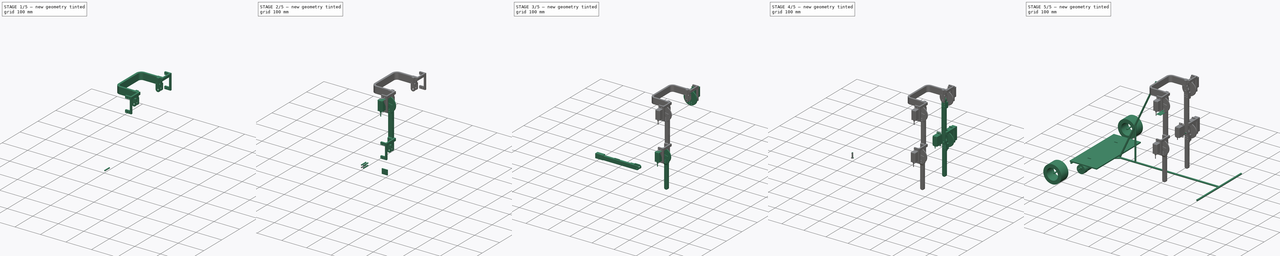
[diagram: build sequence overview — one tinted view per stage of 5, left to right]
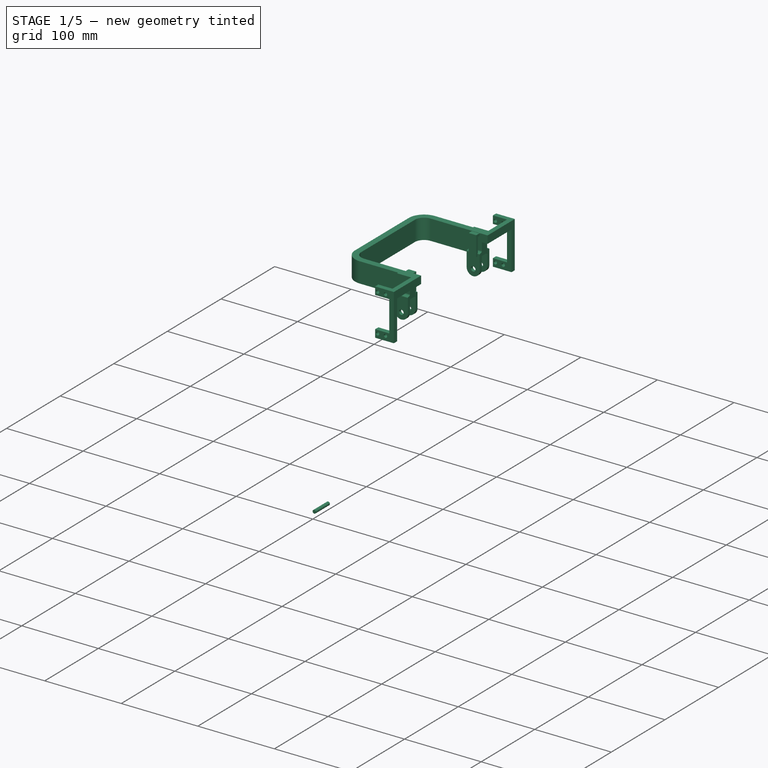
[diagram: stage 1 of 5 — iso view after this stage's code; geometry added in this stage tinted green]
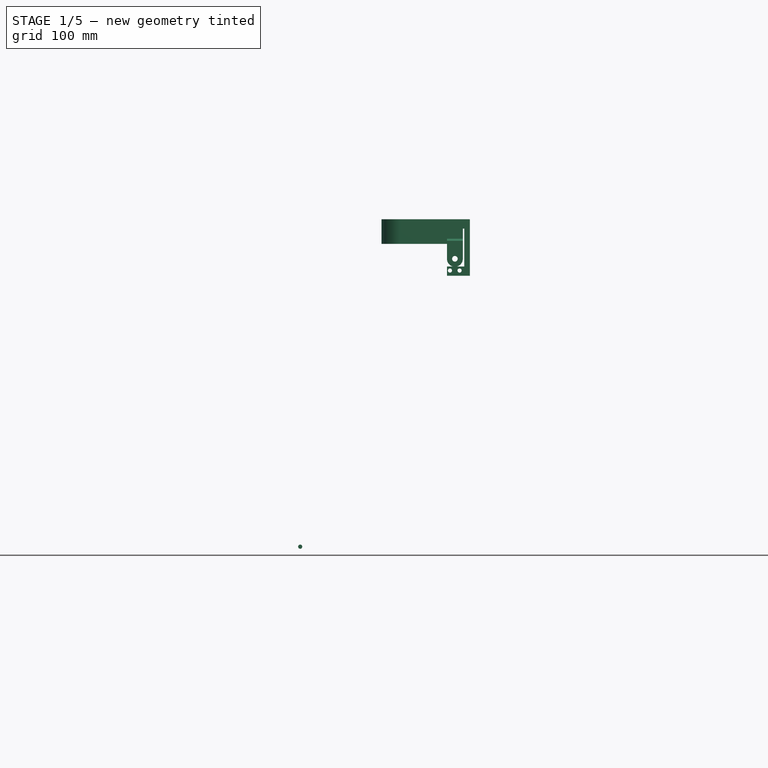
[diagram: stage 1 of 5 — front view after this stage's code; geometry added in this stage tinted green]
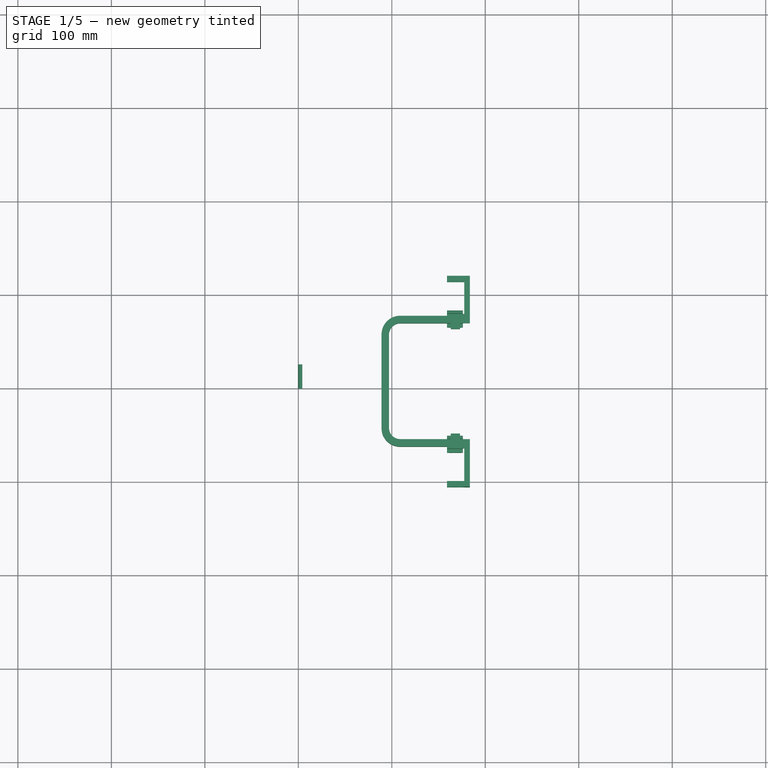
[diagram: stage 1 of 5 — top view after this stage's code; geometry added in this stage tinted green]
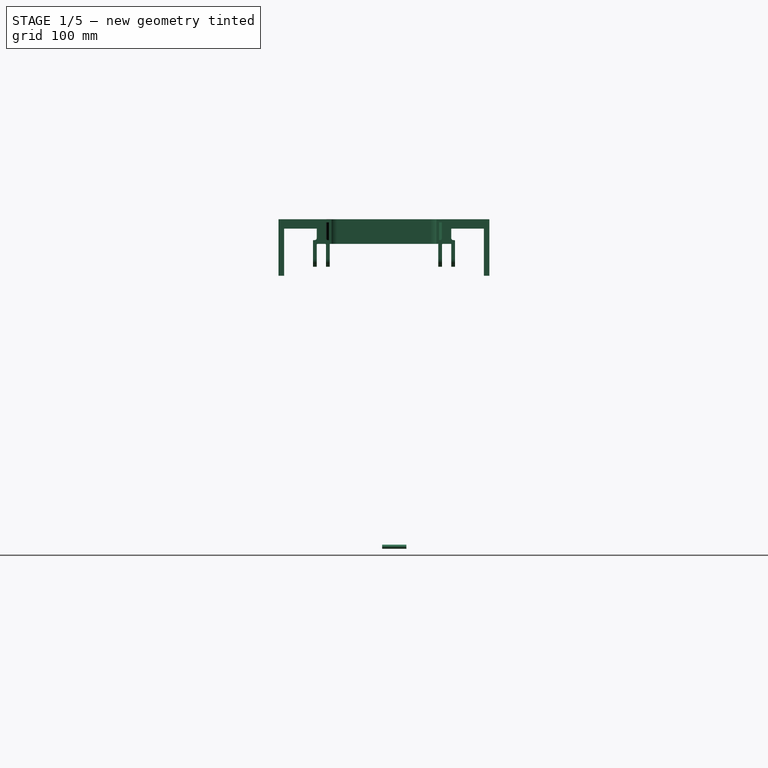
[diagram: stage 1 of 5 — right view after this stage's code; geometry added in this stage tinted green]
FCSTD DOCUMENT  (FreeCAD 0.16R6712 (Git))
Label: Exo+smart
License: All rights reserved
LicenseURL: http://en.wikipedia.org/wiki/All_rights_reserved
objects: Part::Feature×54, Part::Cylinder×47, Part::MultiFuse×40, Part::Cut×31, Part::Box×30, Sketcher::SketchObject×27, PartDesign::Pad×27, Part::Fillet×14, Part::FeaturePython×12, Part::Mirroring×10, Part::Chamfer×4, App::MeasureDistance×2, Part::Compound×1
note: 324 computed .brp shape members not serialized (recipe doc carries the construction recipe); baked Part::Feature solids carry a one-line shape summary decoded from their .brp

FEATURE [Part::Box] Box016  label="Cubo_gancho001"
  Height = 10
  Length = 20
  Placement = pos=(-16,0,4) rot=(0,0,1;0rad)
  Width = 17
FEATURE [Sketcher::SketchObject] Sketch010  label="Boceto_gancho002"
  sketch-geometry (5):
    g0: LineSegment StartX=0 StartY=17 StartZ=0 EndX=20 EndY=17 EndZ=0
    g1: LineSegment StartX=20 StartY=0 StartZ=0 EndX=0 EndY=0 EndZ=0
    g2: LineSegment StartX=0 StartY=0 StartZ=0 EndX=0 EndY=17 EndZ=0
    g3: ArcOfCircle CenterX=20 CenterY=8.5 CenterZ=0 NormalX=0 NormalY=0 NormalZ=1 Radius=8.5 StartAngle=4.71239 EndAngle=7.85398
    g4: Circle CenterX=20 CenterY=8.5 CenterZ=0 NormalX=0 NormalY=0 NormalZ=1 Radius=3
  constraints (14):
    c: Coincident(g1,g2)
    c: Coincident(g2,g0)
    c: Horizontal(g0)
    c: Horizontal(g1)
    c: Vertical(g2)
    c: DistanceY(g2,g2) = 17
    c: DistanceX(g0,g0) = 20
    c: Equal(g0,g1)
    c: Coincident(g3,g0)
    c: Coincident(g3,g1)
    c: Coincident(g-1,g1)
    c: Coincident(g4,g3)
    c: Radius(g3) = 8.5
    c: Radius(g4) = 3
FEATURE [PartDesign::Pad] Pad010  label="Ciculo_gancho003"
  Length = 4
  Length2 = 100
  Sketch = -> Sketch010
  Type = 0
FEATURE [Sketcher::SketchObject] Sketch011  label="Boceto_gancho003"
  Placement = pos=(0,0,14) rot=(0,0,1;0rad)
  sketch-geometry (5):
    g0: LineSegment StartX=0 StartY=17 StartZ=0 EndX=20 EndY=17 EndZ=0
    g1: LineSegment StartX=20 StartY=0 StartZ=0 EndX=0 EndY=0 EndZ=0
    g2: LineSegment StartX=0 StartY=0 StartZ=0 EndX=0 EndY=17 EndZ=0
    g3: ArcOfCircle CenterX=20 CenterY=8.5 CenterZ=0 NormalX=0 NormalY=0 NormalZ=1 Radius=8.5 StartAngle=4.71239 EndAngle=7.85398
    g4: Circle CenterX=20 CenterY=8.5 CenterZ=0 NormalX=0 NormalY=0 NormalZ=1 Radius=3
  constraints (14):
    c: Coincident(g1,g2)
    c: Coincident(g2,g0)
    c: Horizontal(g0)
    c: Horizontal(g1)
    c: Vertical(g2)
    c: DistanceY(g2,g2) = 17
    c: DistanceX(g0,g0) = 20
    c: Equal(g0,g1)
    c: Coincident(g3,g0)
    c: Coincident(g3,g1)
    c: Coincident(g-1,g1)
    c: Coincident(g4,g3)
    c: Radius(g4) = 3
    c: Radius(g3) = 8.5
FEATURE [PartDesign::Pad] Pad011  label="Ciculo_gancho004"
  Length = 4
  Length2 = 100
  Placement = pos=(0,0,14) rot=(0,0,1;0rad)
  Sketch = -> Sketch011
  Type = 0
FEATURE [Part::MultiFuse] Fusion009003009  label="Gancho001"
  Shapes = -> [Box016,Pad010,Pad011]
FEATURE [Part::Fillet] Fillet005  label="Gancho_redondeo001"
  Base = -> Fusion009003009
  Edges = 4 edges r=1: [Edge10,Edge27,Edge28,Edge34]
  Placement = pos=(16,15,0) rot=(1,0,0;1.5708rad)
FEATURE [Part::Fillet] Fillet006  label="Gancho_cadera_1"
  Base = -> Fillet005
  Edges = 4 edges: [Edge36 r=2,Edge37 r=1,Edge41 r=1,Edge47 r=2]
  Placement = pos=(-20,-9,0) rot=(0,0,1;0rad)
FEATURE [Part::Box] Box018  label="Cubo_externo"
  Height = 17
  Length = 16.3
  Placement = pos=(-26.3,-8,0) rot=(0,0,1;0rad)
  Width = 10
FEATURE [Sketcher::SketchObject] Sketch009
  Placement = pos=(0,0,0) rot=(0.57735,0.57735,-0.57735;4.18879rad)
  sketch-geometry (12):
    g0: LineSegment StartX=-140 StartY=0 StartZ=0 EndX=-140 EndY=50 EndZ=0
    g1: LineSegment StartX=-120 StartY=70 StartZ=0 EndX=-20 EndY=70 EndZ=0
    g2: LineSegment StartX=0 StartY=50 StartZ=0 EndX=0 EndY=0 EndZ=0
    g3: LineSegment StartX=0 StartY=0 StartZ=0 EndX=-8 EndY=0 EndZ=0
    g4: LineSegment StartX=-8 StartY=0 StartZ=0 EndX=-8 EndY=50 EndZ=0
    g5: LineSegment StartX=-20 StartY=62 StartZ=0 EndX=-120 EndY=62 EndZ=0
    g6: LineSegment StartX=-132 StartY=50 StartZ=0 EndX=-132 EndY=0 EndZ=0
    g7: LineSegment StartX=-132 StartY=0 StartZ=0 EndX=-140 EndY=0 EndZ=0
    g8: ArcOfCircle CenterX=-120 CenterY=50 CenterZ=0 NormalX=0 NormalY=0 NormalZ=1 Radius=12 StartAngle=1.5708 EndAngle=3.14159
    g9: ArcOfCircle CenterX=-120 CenterY=50 CenterZ=0 NormalX=0 NormalY=0 NormalZ=1 Radius=20 StartAngle=1.5708 EndAngle=3.14159
    g10: ArcOfCircle CenterX=-20 CenterY=50 CenterZ=0 NormalX=0 NormalY=0 NormalZ=1 Radius=12 StartAngle=0 EndAngle=1.5708
    g11: ArcOfCircle CenterX=-20 CenterY=50 CenterZ=0 NormalX=0 NormalY=0 NormalZ=1 Radius=20 StartAngle=0 EndAngle=1.5708
  constraints (32):
    c: Vertical(g0)
    c: Horizontal(g1)
    c: Vertical(g2)
    c: Coincident(g2,g3)
    c: Coincident(g3,g4)
    c: Vertical(g4)
    c: Horizontal(g5)
    c: Vertical(g6)
    c: Coincident(g6,g7)
    c: Coincident(g7,g0)
    c: Horizontal(g7)
    c: Horizontal(g3)
    c: DistanceX(g3,g3) = 8
    c: Equal(g6,g4)
    c: PointOnObject(g2,g-1)
    c: PointOnObject(g2,g-2)
    c: DistanceX(g7,g7) = 8
    c: Tangent(g6,g8) = -1.5708
    c: Tangent(g5,g8) = -1.5708
    c: Tangent(g0,g9) = 1.5708
    c: Tangent(g1,g9) = 1.5708
    c: Tangent(g5,g10) = -1.5708
    c: Tangent(g2,g11) = 1.5708
    c: Tangent(g1,g11) = 1.5708
    c: Coincident(g10,g11)
    c: Radius(g10) = 12
    c: PointOnObject(g6,g-1)
    c: Coincident(g8,g9)
    c: Equal(g10,g8)
    c: DistanceY(g2,g2) = 50
    c: Coincident(g10,g4)
    c: DistanceX(g1,g1) = 100
FEATURE [PartDesign::Pad] Pad009  label="cadera"
  Length = 26.3
  Length2 = 100
  Placement = pos=(0,0,0) rot=(0.57735,0.57735,-0.57735;4.18879rad)
  Sketch = -> Sketch009
  Type = 0
FEATURE [Part::MultiFuse] Fusion009003020  label="Gancho_cadera"
  Shapes = -> [Fillet006,Box018]
FEATURE [Part::Box] Box024  label="Cubo_gancho002"
  Height = 10
  Length = 20
  Placement = pos=(-16,0,4) rot=(0,0,1;0rad)
  Width = 17
FEATURE [Sketcher::SketchObject] Sketch018  label="Boceto_gancho004"
  sketch-geometry (5):
    g0: LineSegment StartX=0 StartY=17 StartZ=0 EndX=20 EndY=17 EndZ=0
    g1: LineSegment StartX=20 StartY=0 StartZ=0 EndX=0 EndY=0 EndZ=0
    g2: LineSegment StartX=0 StartY=0 StartZ=0 EndX=0 EndY=17 EndZ=0
    g3: ArcOfCircle CenterX=20 CenterY=8.5 CenterZ=0 NormalX=0 NormalY=0 NormalZ=1 Radius=8.5 StartAngle=4.71239 EndAngle=7.85398
    g4: Circle CenterX=20 CenterY=8.5 CenterZ=0 NormalX=0 NormalY=0 NormalZ=1 Radius=3
  constraints (14):
    c: Coincident(g1,g2)
    c: Coincident(g2,g0)
    c: Horizontal(g0)
    c: Horizontal(g1)
    c: Vertical(g2)
    c: DistanceY(g2,g2) = 17
    c: DistanceX(g0,g0) = 20
    c: Equal(g0,g1)
    c: Coincident(g3,g0)
    c: Coincident(g3,g1)
    c: Coincident(g-1,g1)
    c: Coincident(g4,g3)
    c: Radius(g3) = 8.5
    c: Radius(g4) = 3
FEATURE [PartDesign::Pad] Pad018  label="Ciculo_gancho005"
  Length = 4
  Length2 = 100
  Sketch = -> Sketch018
  Type = 0
FEATURE [Sketcher::SketchObject] Sketch019  label="Boceto_gancho005"
  Placement = pos=(0,0,14) rot=(0,0,1;0rad)
  sketch-geometry (5):
    g0: LineSegment StartX=0 StartY=17 StartZ=0 EndX=20 EndY=17 EndZ=0
    g1: LineSegment StartX=20 StartY=0 StartZ=0 EndX=0 EndY=0 EndZ=0
    g2: LineSegment StartX=0 StartY=0 StartZ=0 EndX=0 EndY=17 EndZ=0
    g3: ArcOfCircle CenterX=20 CenterY=8.5 CenterZ=0 NormalX=0 NormalY=0 NormalZ=1 Radius=8.5 StartAngle=4.71239 EndAngle=7.85398
    g4: Circle CenterX=20 CenterY=8.5 CenterZ=0 NormalX=0 NormalY=0 NormalZ=1 Radius=3
  constraints (14):
    c: Coincident(g1,g2)
    c: Coincident(g2,g0)
    c: Horizontal(g0)
    c: Horizontal(g1)
    c: Vertical(g2)
    c: DistanceY(g2,g2) = 17
    c: DistanceX(g0,g0) = 20
    c: Equal(g0,g1)
    c: Coincident(g3,g0)
    c: Coincident(g3,g1)
    c: Coincident(g-1,g1)
    c: Coincident(g4,g3)
    c: Radius(g4) = 3
    c: Radius(g3) = 8.5
FEATURE [PartDesign::Pad] Pad019  label="Ciculo_gancho006"
  Length = 4
  Length2 = 100
  Placement = pos=(0,0,14) rot=(0,0,1;0rad)
  Sketch = -> Sketch019
  Type = 0
FEATURE [Part::MultiFuse] Fusion009003021  label="Gancho002"
  Shapes = -> [Box024,Pad018,Pad019]
FEATURE [Part::Fillet] Fillet007  label="Gancho_redondeo002"
  Base = -> Fusion009003021
  Edges = 4 edges r=1: [Edge10,Edge27,Edge28,Edge34]
  Placement = pos=(16,15,0) rot=(1,0,0;1.5708rad)
FEATURE [Part::Fillet] Fillet008  label="Gancho_cadera_002"
  Base = -> Fillet007
  Edges = 4 edges: [Edge36 r=2,Edge37 r=1,Edge41 r=1,Edge47 r=2]
  Placement = pos=(-20,-9,0) rot=(0,0,1;0rad)
FEATURE [Part::Box] Box025  label="Cubo_externo001"
  Height = 17
  Length = 16.3
  Placement = pos=(-26.3,-8,0) rot=(0,0,1;0rad)
  Width = 10
FEATURE [Part::MultiFuse] Fusion009003022  label="Gancho_cadera1"
  Placement = pos=(0,-134,0) rot=(0,0,1;0rad)
  Shapes = -> [Fillet008,Box025]
FEATURE [Part::MultiFuse] Fusion009003023  label="Ganchos_cadera"
  Shapes = -> [Fusion009003020,Fusion009003022]
FEATURE [Part::MultiFuse] Fusion009003024  label="Cadera_ganchos"
  Placement = pos=(-2,5,0) rot=(0,0,1;0rad)
  Shapes = -> [Pad009,Fusion009003023]
FEATURE [Part::Box] Box026  label="Resta_sujetador_cadera"
  Height = 30
  Length = 12
  Placement = pos=(-29.5,-13,0) rot=(0,0,1;0rad)
  Width = 10
FEATURE [Sketcher::SketchObject] Sketch020  label="Boceto_suje_motor003"
  Placement = pos=(0,0,0) rot=(0.57735,0.57735,0.57735;2.0944rad)
  sketch-geometry (8):
    g0: LineSegment StartX=14 StartY=0 StartZ=0 EndX=0 EndY=0 EndZ=0
    g1: LineSegment StartX=0 StartY=0 StartZ=0 EndX=0 EndY=24.5 EndZ=0
    g2: LineSegment StartX=0 StartY=24.5 StartZ=0 EndX=54.8 EndY=24.5 EndZ=0
    g3: LineSegment StartX=54.8 StartY=24.5 StartZ=0 EndX=54.8 EndY=0 EndZ=0
    g4: LineSegment StartX=54.8 StartY=0 StartZ=0 EndX=48.8 EndY=0 EndZ=0
    g5: LineSegment StartX=48.8 StartY=0 StartZ=0 EndX=48.8 EndY=18.5 EndZ=0
    g6: LineSegment StartX=48.8 StartY=18.5 StartZ=0 EndX=14 EndY=18.5 EndZ=0
    g7: LineSegment StartX=14 StartY=18.5 StartZ=0 EndX=14 EndY=0 EndZ=0
  constraints (24):
    c: Horizontal(g0)
    c: Coincident(g0,g1)
    c: Vertical(g1)
    c: Coincident(g1,g2)
    c: Horizontal(g2)
    c: Coincident(g2,g3)
    c: Vertical(g3)
    c: Coincident(g3,g4)
    c: Horizontal(g4)
    c: Coincident(g4,g5)
    c: Vertical(g5)
    c: Coincident(g5,g6)
    c: Horizontal(g6)
    c: Coincident(g6,g7)
    c: Coincident(g7,g0)
    c: Vertical(g7)
    c: DistanceX(g0,g0) = 14
    c: DistanceY(g7,g7) = 18.5
    c: Equal(g7,g5)
    c: DistanceY(g1,g1) = 24.5
    c: Equal(g1,g3)
    c: DistanceX(g6,g6) = 34.8
    c: Coincident(g0,g-1)
    c: DistanceX(g4,g4) = 6
FEATURE [PartDesign::Pad] Pad020  label="Suje_motor003"
  Length = 10
  Length2 = 100
  Placement = pos=(0,0,0) rot=(0.57735,0.57735,0.57735;2.0944rad)
  Sketch = -> Sketch020
  Type = 0
FEATURE [Sketcher::SketchObject] Sketch021  label="Boceto_suje_motor004"
  Placement = pos=(10,54.8,0) rot=(1,0,0;1.5708rad)
  sketch-geometry (6):
    g0: LineSegment StartX=0 StartY=18.5 StartZ=0 EndX=0 EndY=24.5 EndZ=0
    g1: LineSegment StartX=0 StartY=24.5 StartZ=0 EndX=50.5 EndY=24.5 EndZ=0
    g2: LineSegment StartX=50.5 StartY=24.5 StartZ=0 EndX=50.5 EndY=0 EndZ=0
    g3: LineSegment StartX=50.5 StartY=0 StartZ=0 EndX=40.5 EndY=0 EndZ=0
    g4: LineSegment StartX=40.5 StartY=0 StartZ=0 EndX=40.5 EndY=18.5 EndZ=0
    g5: LineSegment StartX=40.5 StartY=18.5 StartZ=0 EndX=0 EndY=18.5 EndZ=0
  constraints (18):
    c: Vertical(g0)
    c: Coincident(g0,g1)
    c: Horizontal(g1)
    c: Coincident(g1,g2)
    c: Vertical(g2)
    c: Coincident(g2,g3)
    c: Horizontal(g3)
    c: Coincident(g3,g4)
    c: Vertical(g4)
    c: Coincident(g4,g5)
    c: Coincident(g5,g0)
    c: Horizontal(g5)
    c: DistanceX(g5,g5) = 40.5
    c: DistanceY(g4,g4) = 18.5
    c: PointOnObject(g3,g-1)
    c: PointOnObject(g0,g-2)
    c: DistanceY(g0,g0) = 6
    c: DistanceX(g3,g3) = 10
FEATURE [PartDesign::Pad] Pad021  label="Suje_motor004"
  Length = 6
  Length2 = 100
  Placement = pos=(10,54.8,0) rot=(1,0,0;1.5708rad)
  Sketch = -> Sketch021
  Type = 0
FEATURE [Part::Cylinder] Cylinder036  label="Taladro_suje_motor001"
  Angle = 360
  Height = 18
  Placement = pos=(150.075,41,13.5) rot=(-1,0,0;1.5708rad)
  Radius = 2.2
FEATURE [Part::FeaturePython] Array006  label="Taladros_suje_motor001"  # Draft array (typed FeaturePython)
  Angle = 360
  ArrayType = 0
  Axis = (0,0,1)
  Base = -> Cylinder036
  Center = (0,0,0)
  Fuse = false
  IntervalAxis = (0,0,0)
  IntervalX = (49.2,0,0)
  IntervalY = (0,1,0)
  IntervalZ = (0,0,-10.3)
  NumberPolar = 1
  NumberX = 2
  NumberY = 1
  NumberZ = 2
FEATURE [Part::MultiFuse] Fusion009003025  label="Suje_motor005"
  Placement = pos=(144.425,-3,0) rot=(0,0,1;0rad)
  Shapes = -> [Pad020,Pad021]
FEATURE [Part::Cut] Cut017  label="Sujetador_cadera"
  Base = -> Fusion009003025
  Placement = pos=(-172.725,-4,0) rot=(0,0,1;0rad)
  Tool = -> Array006
FEATURE [Part::Cut] Cut018  label="Sujetador_cadera_full1"
  Base = -> Cut017
  Tool = -> Box026
FEATURE [Part::Box] Box027  label="Resta_sujetador_cadera001"
  Height = 30
  Length = 12
  Placement = pos=(-29.5,-13,0) rot=(0,0,1;0rad)
  Width = 10
FEATURE [Sketcher::SketchObject] Sketch022  label="Boceto_suje_motor005"
  Placement = pos=(0,0,0) rot=(0.57735,0.57735,0.57735;2.0944rad)
  sketch-geometry (8):
    g0: LineSegment StartX=14 StartY=0 StartZ=0 EndX=0 EndY=0 EndZ=0
    g1: LineSegment StartX=0 StartY=0 StartZ=0 EndX=0 EndY=24.5 EndZ=0
    g2: LineSegment StartX=0 StartY=24.5 StartZ=0 EndX=54.8 EndY=24.5 EndZ=0
    g3: LineSegment StartX=54.8 StartY=24.5 StartZ=0 EndX=54.8 EndY=0 EndZ=0
    g4: LineSegment StartX=54.8 StartY=0 StartZ=0 EndX=48.8 EndY=0 EndZ=0
    g5: LineSegment StartX=48.8 StartY=0 StartZ=0 EndX=48.8 EndY=18.5 EndZ=0
    g6: LineSegment StartX=48.8 StartY=18.5 StartZ=0 EndX=14 EndY=18.5 EndZ=0
    g7: LineSegment StartX=14 StartY=18.5 StartZ=0 EndX=14 EndY=0 EndZ=0
  constraints (24):
    c: Horizontal(g0)
    c: Coincident(g0,g1)
    c: Vertical(g1)
    c: Coincident(g1,g2)
    c: Horizontal(g2)
    c: Coincident(g2,g3)
    c: Vertical(g3)
    c: Coincident(g3,g4)
    c: Horizontal(g4)
    c: Coincident(g4,g5)
    c: Vertical(g5)
    c: Coincident(g5,g6)
    c: Horizontal(g6)
    c: Coincident(g6,g7)
    c: Coincident(g7,g0)
    c: Vertical(g7)
    c: DistanceX(g0,g0) = 14
    c: DistanceY(g7,g7) = 18.5
    c: Equal(g7,g5)
    c: DistanceY(g1,g1) = 24.5
    c: Equal(g1,g3)
    c: DistanceX(g6,g6) = 34.8
    c: Coincident(g0,g-1)
    c: DistanceX(g4,g4) = 6
FEATURE [PartDesign::Pad] Pad022  label="Suje_motor006"
  Length = 10
  Length2 = 100
  Placement = pos=(0,0,0) rot=(0.57735,0.57735,0.57735;2.0944rad)
  Sketch = -> Sketch022
  Type = 0
FEATURE [Sketcher::SketchObject] Sketch023  label="Boceto_suje_motor006"
  Placement = pos=(10,54.8,0) rot=(1,0,0;1.5708rad)
  sketch-geometry (6):
    g0: LineSegment StartX=0 StartY=18.5 StartZ=0 EndX=0 EndY=24.5 EndZ=0
    g1: LineSegment StartX=0 StartY=24.5 StartZ=0 EndX=50.5 EndY=24.5 EndZ=0
    g2: LineSegment StartX=50.5 StartY=24.5 StartZ=0 EndX=50.5 EndY=0 EndZ=0
    g3: LineSegment StartX=50.5 StartY=0 StartZ=0 EndX=40.5 EndY=0 EndZ=0
    g4: LineSegment StartX=40.5 StartY=0 StartZ=0 EndX=40.5 EndY=18.5 EndZ=0
    g5: LineSegment StartX=40.5 StartY=18.5 StartZ=0 EndX=0 EndY=18.5 EndZ=0
  constraints (18):
    c: Vertical(g0)
    c: Coincident(g0,g1)
    c: Horizontal(g1)
    c: Coincident(g1,g2)
    c: Vertical(g2)
    c: Coincident(g2,g3)
    c: Horizontal(g3)
    c: Coincident(g3,g4)
    c: Vertical(g4)
    c: Coincident(g4,g5)
    c: Coincident(g5,g0)
    c: Horizontal(g5)
    c: DistanceX(g5,g5) = 40.5
    c: DistanceY(g4,g4) = 18.5
    c: PointOnObject(g3,g-1)
    c: PointOnObject(g0,g-2)
    c: DistanceY(g0,g0) = 6
    c: DistanceX(g3,g3) = 10
FEATURE [PartDesign::Pad] Pad023  label="Suje_motor007"
  Length = 6
  Length2 = 100
  Placement = pos=(10,54.8,0) rot=(1,0,0;1.5708rad)
  Sketch = -> Sketch023
  Type = 0
FEATURE [Part::Cylinder] Cylinder037  label="Taladro_suje_motor002"
  Angle = 360
  Height = 18
  Placement = pos=(150.075,41,13.5) rot=(-1,0,0;1.5708rad)
  Radius = 2.2
FEATURE [Part::FeaturePython] Array007  label="Taladros_suje_motor002"  # Draft array (typed FeaturePython)
  Angle = 360
  ArrayType = 0
  Axis = (0,0,1)
  Base = -> Cylinder037
  Center = (0,0,0)
  Fuse = false
  IntervalAxis = (0,0,0)
  IntervalX = (49.2,0,0)
  IntervalY = (0,1,0)
  IntervalZ = (0,0,-10.3)
  NumberPolar = 1
  NumberX = 2
  NumberY = 1
  NumberZ = 2
FEATURE [Part::MultiFuse] Fusion009003026  label="Suje_motor008"
  Placement = pos=(144.425,-3,0) rot=(0,0,1;0rad)
  Shapes = -> [Pad022,Pad023]
FEATURE [Part::Cut] Cut019  label="Sujetador_cadera001"
  Base = -> Fusion009003026
  Placement = pos=(-172.725,-4,0) rot=(0,0,1;0rad)
  Tool = -> Array007
FEATURE [Part::Cut] Cut020  label="Sujetador_cadera_full2"
  Base = -> Cut019
  Tool = -> Box027
FEATURE [Part::Mirroring] Part__Mirroring  label="Sujetador_cadera_full Mirror"
  Base = (0,0,0)
  Normal = (0,1,0)
  Placement = pos=(0,-130,0) rot=(0,0,1;0rad)
  Source = -> Cut020
FEATURE [Part::MultiFuse] Fusion009003027  label="Cadera_full"
  Shapes = -> [Fusion009003024,Cut018,Part__Mirroring]
FEATURE [Part::Cylinder] Cylinder048  label="Taladro_suje_traccion007"
  Angle = 360
  Height = 26
  Placement = pos=(202,0,4) rot=(-1,0,0;1.5708rad)
  Radius = 2.2
FEATURE [Sketcher::SketchObject] Sketch032
  Placement = pos=(-28,-127,4) rot=(0,0,1;0rad)
  sketch-geometry (8):
    g0: LineSegment StartX=0 StartY=0 StartZ=0 EndX=0 EndY=6 EndZ=0
    g1: LineSegment StartX=0 StartY=6 StartZ=0 EndX=26 EndY=6 EndZ=0
    g2: LineSegment StartX=26 StartY=6 StartZ=0 EndX=26 EndY=0 EndZ=0
    g3: LineSegment StartX=26 StartY=0 StartZ=0 EndX=23 EndY=0 EndZ=0
    g4: LineSegment StartX=23 StartY=0 StartZ=0 EndX=23 EndY=3 EndZ=0
    g5: LineSegment StartX=23 StartY=3 StartZ=0 EndX=3 EndY=3 EndZ=0
    g6: LineSegment StartX=3 StartY=3 StartZ=0 EndX=3 EndY=0 EndZ=0
    g7: LineSegment StartX=3 StartY=0 StartZ=0 EndX=0 EndY=0 EndZ=0
  constraints (24):
    c: Vertical(g0)
    c: Coincident(g0,g1)
    c: Horizontal(g1)
    c: Coincident(g1,g2)
    c: Vertical(g2)
    c: Coincident(g2,g3)
    c: Horizontal(g3)
    c: Coincident(g3,g4)
    c: Vertical(g4)
    c: Coincident(g4,g5)
    c: Horizontal(g5)
    c: Coincident(g5,g6)
    c: Vertical(g6)
    c: Coincident(g6,g7)
    c: Coincident(g7,g0)
    c: Horizontal(g7)
    c: DistanceX(g5,g5) = 20
    c: DistanceX(g7,g7) = 3
    c: Equal(g3,g7)
    c: DistanceY(g6,g6) = 3
    c: Equal(g4,g6)
    c: DistanceY(g0,g0) = 6
    c: Equal(g0,g2)
    c: Coincident(g0,g-1)
FEATURE [PartDesign::Pad] Pad032  label="suje_cadera"
  Length = 10
  Length2 = 100
  Placement = pos=(-28,-127,4) rot=(0,0,1;0rad)
  Sketch = -> Sketch032
  Type = 0
FEATURE [Sketcher::SketchObject] Sketch033
  Placement = pos=(-28,-127,4) rot=(0,0,1;0rad)
  sketch-geometry (8):
    g0: LineSegment StartX=0 StartY=0 StartZ=0 EndX=0 EndY=6 EndZ=0
    g1: LineSegment StartX=0 StartY=6 StartZ=0 EndX=26 EndY=6 EndZ=0
    g2: LineSegment StartX=26 StartY=6 StartZ=0 EndX=26 EndY=0 EndZ=0
    g3: LineSegment StartX=26 StartY=0 StartZ=0 EndX=23 EndY=0 EndZ=0
    g4: LineSegment StartX=23 StartY=0 StartZ=0 EndX=23 EndY=3 EndZ=0
    g5: LineSegment StartX=23 StartY=3 StartZ=0 EndX=3 EndY=3 EndZ=0
    g6: LineSegment StartX=3 StartY=3 StartZ=0 EndX=3 EndY=0 EndZ=0
    g7: LineSegment StartX=3 StartY=0 StartZ=0 EndX=0 EndY=0 EndZ=0
  constraints (24):
    c: Vertical(g0)
    c: Coincident(g0,g1)
    c: Horizontal(g1)
    c: Coincident(g1,g2)
    c: Vertical(g2)
    c: Coincident(g2,g3)
    c: Horizontal(g3)
    c: Coincident(g3,g4)
    c: Vertical(g4)
    c: Coincident(g4,g5)
    c: Horizontal(g5)
    c: Coincident(g5,g6)
    c: Vertical(g6)
    c: Coincident(g6,g7)
    c: Coincident(g7,g0)
    c: Horizontal(g7)
    c: DistanceX(g5,g5) = 20
    c: DistanceX(g7,g7) = 3
    c: Equal(g3,g7)
    c: DistanceY(g6,g6) = 3
    c: Equal(g4,g6)
    c: DistanceY(g0,g0) = 6
    c: Equal(g0,g2)
    c: Coincident(g0,g-1)
FEATURE [PartDesign::Pad] Pad033  label="suje_cadera1"
  Length = 10
  Length2 = 100
  Placement = pos=(-28,-127,4) rot=(0,0,1;0rad)
  Sketch = -> Sketch033
  Type = 0
FEATURE [Part::Mirroring] Part__Mirroring009  label="suje_cadera1_Mirror"
  Base = (0,0,0)
  Normal = (0,1,0)
  Placement = pos=(0,-130,0) rot=(0,0,1;0rad)
  Source = -> Pad033
FEATURE [Part::MultiFuse] Fusion009003040  label="Sujetadores_cadera"
  Shapes = -> [Pad032,Part__Mirroring009]
FEATURE [Part::MultiFuse] Fusion009003041  label="Cadera_full_suje"
  Placement = pos=(359,67,326) rot=(0,1,0;1.5708rad)
  Shapes = -> [Fusion009003027,Fusion009003040]
FEATURE [App::MeasureDistance] Distance001  label="Distance: 275,425 mm"
  Distance = 275.425
  P1 = (114,-107.119,3.5)
  P2 = (357.6,-103.619,131.975)
FEATURE [App::MeasureDistance] Distance002  label="Distance: 223,49 mm"
  Distance = 223.49
  P1 = (377.4,-129.534,131.975)
  P2 = (556.668,-118.247,-1.00285)
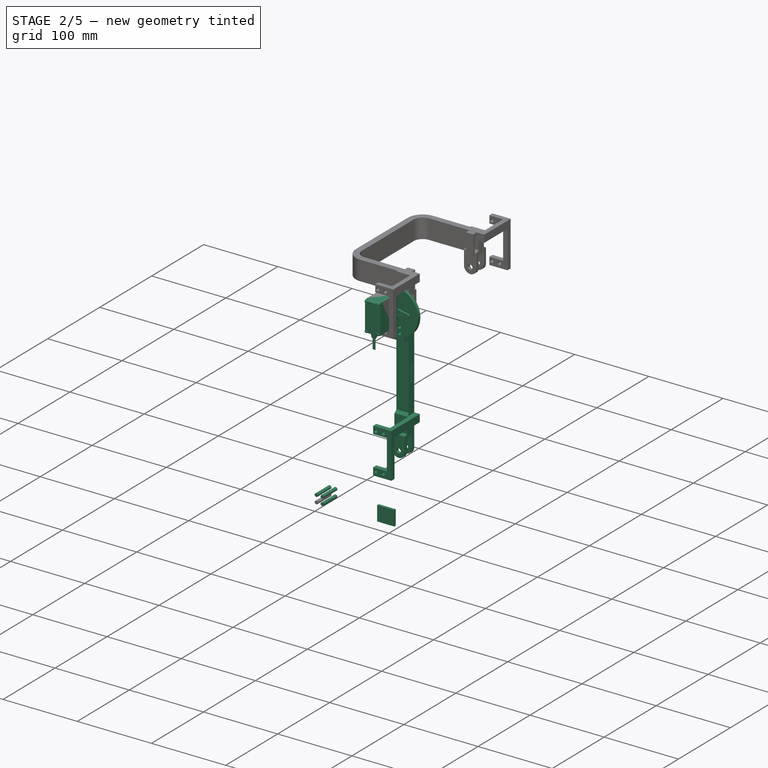
[diagram: stage 2 of 5 — iso view after this stage's code; geometry added in this stage tinted green]
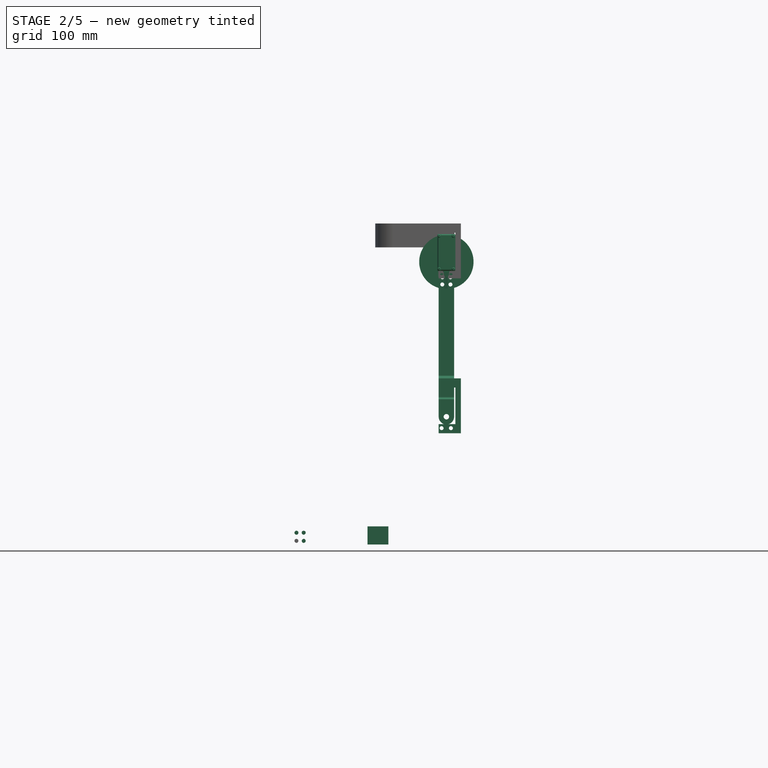
[diagram: stage 2 of 5 — front view after this stage's code; geometry added in this stage tinted green]
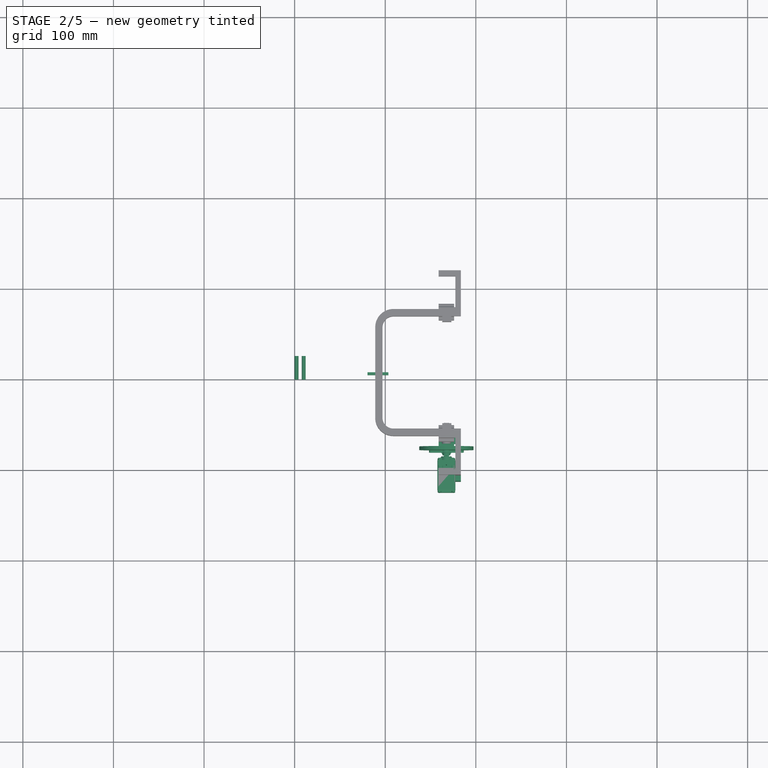
[diagram: stage 2 of 5 — top view after this stage's code; geometry added in this stage tinted green]
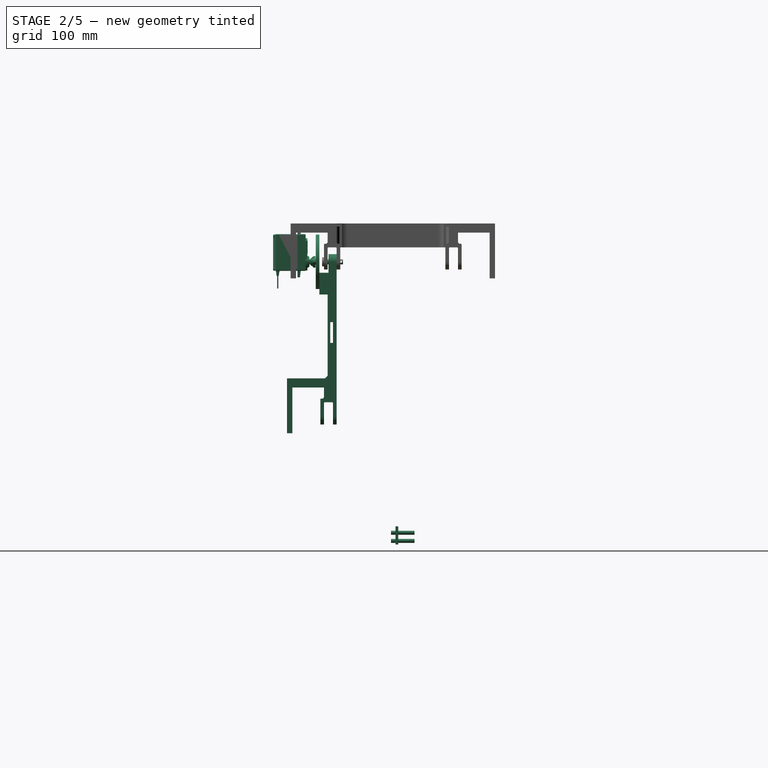
[diagram: stage 2 of 5 — right view after this stage's code; geometry added in this stage tinted green]
FEATURE [Part::Box] Box028  label="Base_femur001"
  Height = 17
  Length = 167
  Placement = pos=(0,-3,0) rot=(0,0,1;0rad)
  Width = 10
FEATURE [Part::Box] Box029  label="Cubo_gancho003"
  Height = 10
  Length = 20
  Placement = pos=(-16,0,4) rot=(0,0,1;0rad)
  Width = 17
FEATURE [Sketcher::SketchObject] Sketch024  label="Boceto_gancho006"
  sketch-geometry (5):
    g0: LineSegment StartX=0 StartY=17 StartZ=0 EndX=20 EndY=17 EndZ=0
    g1: LineSegment StartX=20 StartY=0 StartZ=0 EndX=0 EndY=0 EndZ=0
    g2: LineSegment StartX=0 StartY=0 StartZ=0 EndX=0 EndY=17 EndZ=0
    g3: ArcOfCircle CenterX=20 CenterY=8.5 CenterZ=0 NormalX=0 NormalY=0 NormalZ=1 Radius=8.5 StartAngle=4.71239 EndAngle=7.85398
    g4: Circle CenterX=20 CenterY=8.5 CenterZ=0 NormalX=0 NormalY=0 NormalZ=1 Radius=3
  constraints (14):
    c: Coincident(g1,g2)
    c: Coincident(g2,g0)
    c: Horizontal(g0)
    c: Horizontal(g1)
    c: Vertical(g2)
    c: DistanceY(g2,g2) = 17
    c: DistanceX(g0,g0) = 20
    c: Equal(g0,g1)
    c: Coincident(g3,g0)
    c: Coincident(g3,g1)
    c: Coincident(g-1,g1)
    c: Coincident(g4,g3)
    c: Radius(g3) = 8.5
    c: Radius(g4) = 3
FEATURE [PartDesign::Pad] Pad024  label="Ciculo_gancho007"
  Length = 4
  Length2 = 100
  Sketch = -> Sketch024
  Type = 0
FEATURE [Sketcher::SketchObject] Sketch025  label="Boceto_gancho007"
  Placement = pos=(0,0,14) rot=(0,0,1;0rad)
  sketch-geometry (5):
    g0: LineSegment StartX=0 StartY=17 StartZ=0 EndX=20 EndY=17 EndZ=0
    g1: LineSegment StartX=20 StartY=0 StartZ=0 EndX=0 EndY=0 EndZ=0
    g2: LineSegment StartX=0 StartY=0 StartZ=0 EndX=0 EndY=17 EndZ=0
    g3: ArcOfCircle CenterX=20 CenterY=8.5 CenterZ=0 NormalX=0 NormalY=0 NormalZ=1 Radius=8.5 StartAngle=4.71239 EndAngle=7.85398
    g4: Circle CenterX=20 CenterY=8.5 CenterZ=0 NormalX=0 NormalY=0 NormalZ=1 Radius=3
  constraints (14):
    c: Coincident(g1,g2)
    c: Coincident(g2,g0)
    c: Horizontal(g0)
    c: Horizontal(g1)
    c: Vertical(g2)
    c: DistanceY(g2,g2) = 17
    c: DistanceX(g0,g0) = 20
    c: Equal(g0,g1)
    c: Coincident(g3,g0)
    c: Coincident(g3,g1)
    c: Coincident(g-1,g1)
    c: Coincident(g4,g3)
    c: Radius(g4) = 3
    c: Radius(g3) = 8.5
FEATURE [PartDesign::Pad] Pad025  label="Ciculo_gancho008"
  Length = 4
  Length2 = 100
  Placement = pos=(0,0,14) rot=(0,0,1;0rad)
  Sketch = -> Sketch025
  Type = 0
FEATURE [Part::MultiFuse] Fusion009003028  label="Gancho003"
  Shapes = -> [Box029,Pad024,Pad025]
FEATURE [Part::Fillet] Fillet009  label="Gancho_redondeo003"
  Base = -> Fusion009003028
  Edges = 4 edges r=1: [Edge10,Edge27,Edge28,Edge34]
  Placement = pos=(16,15,0) rot=(1,0,0;1.5708rad)
FEATURE [Part::Fillet] Fillet010  label="Gancho_femur001"
  Base = -> Fillet009
  Edges = 4 edges: [Edge36 r=2,Edge37 r=1,Edge41 r=1,Edge47 r=2]
  Placement = pos=(149,0,0) rot=(0,0,1;0rad)
FEATURE [Part::MultiFuse] Fusion009003029  label="Femur_gancho001"
  Shapes = -> [Box028,Fillet010]
FEATURE [Sketcher::SketchObject] Sketch028  label="Boceto_suje_motor007"
  Placement = pos=(0,0,0) rot=(0.57735,0.57735,0.57735;2.0944rad)
  sketch-geometry (8):
    g0: LineSegment StartX=14 StartY=0 StartZ=0 EndX=0 EndY=0 EndZ=0
    g1: LineSegment StartX=0 StartY=0 StartZ=0 EndX=0 EndY=24.5 EndZ=0
    g2: LineSegment StartX=0 StartY=24.5 StartZ=0 EndX=54.8 EndY=24.5 EndZ=0
    g3: LineSegment StartX=54.8 StartY=24.5 StartZ=0 EndX=54.8 EndY=0 EndZ=0
    g4: LineSegment StartX=54.8 StartY=0 StartZ=0 EndX=48.8 EndY=0 EndZ=0
    g5: LineSegment StartX=48.8 StartY=0 StartZ=0 EndX=48.8 EndY=18.5 EndZ=0
    g6: LineSegment StartX=48.8 StartY=18.5 StartZ=0 EndX=14 EndY=18.5 EndZ=0
    g7: LineSegment StartX=14 StartY=18.5 StartZ=0 EndX=14 EndY=0 EndZ=0
  constraints (24):
    c: Horizontal(g0)
    c: Coincident(g0,g1)
    c: Vertical(g1)
    c: Coincident(g1,g2)
    c: Horizontal(g2)
    c: Coincident(g2,g3)
    c: Vertical(g3)
    c: Coincident(g3,g4)
    c: Horizontal(g4)
    c: Coincident(g4,g5)
    c: Vertical(g5)
    c: Coincident(g5,g6)
    c: Horizontal(g6)
    c: Coincident(g6,g7)
    c: Coincident(g7,g0)
    c: Vertical(g7)
    c: DistanceX(g0,g0) = 14
    c: DistanceY(g7,g7) = 18.5
    c: Equal(g7,g5)
    c: DistanceY(g1,g1) = 24.5
    c: Equal(g1,g3)
    c: DistanceX(g6,g6) = 34.8
    c: Coincident(g0,g-1)
    c: DistanceX(g4,g4) = 6
FEATURE [PartDesign::Pad] Pad028  label="Suje_motor009"
  Length = 10
  Length2 = 100
  Placement = pos=(0,0,0) rot=(0.57735,0.57735,0.57735;2.0944rad)
  Sketch = -> Sketch028
  Type = 0
FEATURE [Sketcher::SketchObject] Sketch029  label="Boceto_suje_motor008"
  Placement = pos=(10,54.8,0) rot=(1,0,0;1.5708rad)
  sketch-geometry (6):
    g0: LineSegment StartX=0 StartY=18.5 StartZ=0 EndX=0 EndY=24.5 EndZ=0
    g1: LineSegment StartX=0 StartY=24.5 StartZ=0 EndX=50.5 EndY=24.5 EndZ=0
    g2: LineSegment StartX=50.5 StartY=24.5 StartZ=0 EndX=50.5 EndY=0 EndZ=0
    g3: LineSegment StartX=50.5 StartY=0 StartZ=0 EndX=40.5 EndY=0 EndZ=0
    g4: LineSegment StartX=40.5 StartY=0 StartZ=0 EndX=40.5 EndY=18.5 EndZ=0
    g5: LineSegment StartX=40.5 StartY=18.5 StartZ=0 EndX=0 EndY=18.5 EndZ=0
  constraints (18):
    c: Vertical(g0)
    c: Coincident(g0,g1)
    c: Horizontal(g1)
    c: Coincident(g1,g2)
    c: Vertical(g2)
    c: Coincident(g2,g3)
    c: Horizontal(g3)
    c: Coincident(g3,g4)
    c: Vertical(g4)
    c: Coincident(g4,g5)
    c: Coincident(g5,g0)
    c: Horizontal(g5)
    c: DistanceX(g5,g5) = 40.5
    c: DistanceY(g4,g4) = 18.5
    c: PointOnObject(g3,g-1)
    c: PointOnObject(g0,g-2)
    c: DistanceY(g0,g0) = 6
    c: DistanceX(g3,g3) = 10
FEATURE [PartDesign::Pad] Pad029  label="Suje_motor010"
  Length = 6
  Length2 = 100
  Placement = pos=(10,54.8,0) rot=(1,0,0;1.5708rad)
  Sketch = -> Sketch029
  Type = 0
FEATURE [Part::Cylinder] Cylinder040  label="Taladro_suje_motor003"
  Angle = 360
  Height = 18
  Placement = pos=(150.075,41,13.5) rot=(-1,0,0;1.5708rad)
  Radius = 2.2
FEATURE [Part::FeaturePython] Array008  label="Taladros_suje_motor003"  # Draft array (typed FeaturePython)
  Angle = 360
  ArrayType = 0
  Axis = (0,0,1)
  Base = -> Cylinder040
  Center = (0,0,0)
  Fuse = false
  IntervalAxis = (0,0,0)
  IntervalX = (49.2,0,0)
  IntervalY = (0,1,0)
  IntervalZ = (0,0,-10.3)
  NumberPolar = 1
  NumberX = 2
  NumberY = 1
  NumberZ = 2
FEATURE [Part::MultiFuse] Fusion009003033  label="Suje_motor011"
  Placement = pos=(144.425,-3,0) rot=(0,0,1;0rad)
  Shapes = -> [Pad028,Pad029]
FEATURE [Part::Cut] Cut022  label="Sujetador_motor001"
  Base = -> Fusion009003033
  Placement = pos=(-1.725,0,0) rot=(0,0,1;0rad)
  Tool = -> Array008
FEATURE [Part::Box] Box032  label="Agarre002"
  Height = 20
  Length = 23
  Placement = pos=(80.5,1,0) rot=(0,0,1;0rad)
  Width = 3
FEATURE [Part::Cut] Cut023  label="Femur_agarre001"
  Base = -> Fusion009003029
  Tool = -> Box032
FEATURE [Part::MultiFuse] Fusion009003034  label="Femur001"
  Shapes = -> [Cut022,Cut023]
FEATURE [Part::Box] Box033  label="Agarre003"
  Height = 20
  Length = 23
  Placement = pos=(280.5,5,0) rot=(0,0,1;0rad)
  Width = 3
FEATURE [Part::Cylinder] Cylinder042  label="Taladro_suje_traccion004"
  Angle = 360
  Height = 26
  Placement = pos=(202,0,4) rot=(-1,0,0;1.5708rad)
  Radius = 2.2
FEATURE [Part::FeaturePython] Array009  label="Taladros_suje_traccion004"  # Draft array (typed FeaturePython)
  Angle = 360
  ArrayType = 0
  Axis = (0,0,1)
  Base = -> Cylinder042
  Center = (0,0,0)
  Fuse = false
  IntervalAxis = (0,0,0)
  IntervalX = (8,0,0)
  IntervalY = (0,1,0)
  IntervalZ = (0,0,9)
  NumberPolar = 1
  NumberX = 2
  NumberY = 1
  NumberZ = 2
FEATURE [Part::Chamfer] Chamfer003  label="Femur_refuerzo001"
  Base = -> Fusion009003034
  Edges = 1 edges r=3: [Edge31]
FEATURE [Part::Box] Box034  label="Suj_traccion003"
  Height = 17
  Length = 24
  Placement = pos=(26,6,0) rot=(0,0,1;0rad)
  Width = 10
FEATURE [Sketcher::SketchObject] Sketch030  label="Boceto_tibia_gancho003"
  Placement = pos=(50,6,0) rot=(1,0,0;1.5708rad)
  sketch-geometry (5):
    g0: LineSegment StartX=0 StartY=17 StartZ=0 EndX=-36 EndY=17 EndZ=0
    g1: LineSegment StartX=-36 StartY=1.3e-11 StartZ=0 EndX=0 EndY=1.3e-11 EndZ=0
    g2: LineSegment StartX=0 StartY=1.3e-11 StartZ=0 EndX=0 EndY=17 EndZ=0
    g3: ArcOfCircle CenterX=-36 CenterY=8.5 CenterZ=0 NormalX=0 NormalY=0 NormalZ=1 Radius=8.5 StartAngle=1.57079 EndAngle=4.71239
    g4: Circle CenterX=-36 CenterY=8.5 CenterZ=0 NormalX=0 NormalY=0 NormalZ=1 Radius=3
  constraints (14):
    c: Coincident(g1,g2)
    c: Coincident(g2,g0)
    c: Horizontal(g0)
    c: Horizontal(g1)
    c: Vertical(g2)
    c: Coincident(g3,g0)
    c: DistanceX(g0,g0) = 36
    c: DistanceY(g2,g2) = 17
    c: Radius(g3) = 8.5
    c: Equal(g0,g1)
    c: Coincident(g3,g1)
    c: Coincident(g1,g-1)
    c: Coincident(g4,g3)
    c: Radius(g4) = 3
FEATURE [PartDesign::Pad] Pad030  label="Circulo_tibia_gancho003"
  Length = 9
  Length2 = 100
  Placement = pos=(50,6,0) rot=(1,0,0;1.5708rad)
  Sketch = -> Sketch030
  Type = 0
FEATURE [Part::Cylinder] Cylinder044  label="Taladro_suje_traccion006"
  Angle = 360
  Height = 26
  Placement = pos=(202,0,4) rot=(-1,0,0;1.5708rad)
  Radius = 2.2
FEATURE [Part::FeaturePython] Array011  label="Taladros_suje_traccion006"  # Draft array (typed FeaturePython)
  Angle = 360
  ArrayType = 0
  Axis = (0,0,1)
  Base = -> Cylinder044
  Center = (0,0,0)
  Fuse = false
  IntervalAxis = (0,0,0)
  IntervalX = (8,0,0)
  IntervalY = (0,1,0)
  IntervalZ = (0,0,9)
  NumberPolar = 1
  NumberX = 2
  NumberY = 1
  NumberZ = 2
  Placement = pos=(-171,-5,0) rot=(0,0,1;0rad)
FEATURE [Part::Box] Box035  label="resta_redondeo_punta001"
  Height = 20
  Length = 35
  Placement = pos=(-2,-5,0) rot=(0,0,1;0rad)
  Width = 15
FEATURE [Part::Cut] Cut027  label="femur_resta_punta001"
  Base = -> Chamfer003
  Tool = -> Box035
FEATURE [Part::MultiFuse] Fusion009003036  label="femur_con_ext_redondeo001"
  Shapes = -> [Cut027,Pad030]
FEATURE [Part::MultiFuse] Fusion009003037  label="Femur_con_sujecion_motor003"
  Shapes = -> [Fusion009003036,Box034]
FEATURE [Part::Cut] Cut028  label="Femur_completo_sin_pulir001"
  Base = -> Fusion009003037
  Tool = -> Array011
FEATURE [Part::Feature] Part__Feature052  label="TOWER PRO MG-995, ANALOG SERVO, BODY, BOTTOM004"
  Placement = pos=(-10.275,40.78,0) rot=(0.707107,0,-0.707107;3.14159rad)
  shape: bbox 40.6 x 6.4 x 19.8 mm, 74 faces (baked)
FEATURE [Part::Feature] Part__Feature053  label="TOWER PRO MG-995, ANALOG SERVO, BODY, MIDDLE004"
  Placement = pos=(-10.275,30.53,0) rot=(0.707107,0,-0.707107;3.14159rad)
  shape: bbox 40.6 x 20.5 x 19.8 mm, 10 faces (baked)
FEATURE [Part::Feature] Part__Feature054  label="TOWER PRO MG-995, ANALOG SERVO, BODY, TOP004"
  Placement = pos=(-10.275,20.28,0) rot=(0.707107,0,-0.707107;3.14159rad)
  shape: bbox 54.6 x 13.2 x 19.8 mm, 91 faces (baked)
FEATURE [Part::Feature] Part__Feature055  label="TOWER PRO MG-995, ANALOG SERVO, CONNECTOR016"
  Placement = pos=(10.025,42.0947,0) rot=(0.707107,0,-0.707107;3.14159rad)
  shape: bbox 5.4 x 4.1 x 6.8 mm, 15 faces (baked)
FEATURE [Part::Feature] Part__Feature056  label="TOWER PRO MG-995, ANALOG SERVO, CONNECTOR017"
  Placement = pos=(10.025,42.0947,0) rot=(0.707107,0,-0.707107;3.14159rad)
  shape: bbox 14 x 1.2 x 1.2 mm, 4 faces (baked)
FEATURE [Part::Feature] Part__Feature057  label="TOWER PRO MG-995, ANALOG SERVO, CONNECTOR018"
  Placement = pos=(10.025,42.0947,0) rot=(0.707107,0,-0.707107;3.14159rad)
  shape: bbox 14 x 1.2 x 1.2 mm, 4 faces (baked)
FEATURE [Part::Feature] Part__Feature058  label="TOWER PRO MG-995, ANALOG SERVO, CONNECTOR019"
  Placement = pos=(10.025,42.0947,0) rot=(0.707107,0,-0.707107;3.14159rad)
  shape: bbox 14 x 1.2 x 1.2 mm, 4 faces (baked)
FEATURE [Part::Feature] Part__Feature059  label="TOWER PRO MG-995, ANALOG SERVO, SHAFT004"
  Placement = pos=(0.025,20.28,0) rot=(0.70883,0,0.705379;3.14159rad)
  shape: bbox 5.8 x 17.5 x 5.79 mm, 191 faces (baked)
FEATURE [Part::Feature] Part__Feature060  label="TOWER PRO MG-995, ANALOG SERVO, HORN004"
  Placement = pos=(0,5.78,-0.025) rot=(0.00244,0,0.999997;3.14159rad)
  shape: bbox 12.7 x 5.75 x 38.36 mm, 132 faces (baked)
FEATURE [Part::Feature] Part__Feature061  label="pan cross head_am_B18.6.7M - M2 x 0.4 x 10 Type I Cross Recessed PHMS --10N016"
  Placement = pos=(-28.375,47.28,7.7) rot=(-0.57735,0.57735,0.57735;4.18879rad)
  shape: bbox 4.33 x 11.6 x 4.33 mm, 23 faces (baked)
FEATURE [Part::Feature] Part__Feature062  label="pan cross head_am_B18.6.7M - M2 x 0.4 x 10 Type I Cross Recessed PHMS --10N017"
  Placement = pos=(-28.375,47.28,-7.7) rot=(-0.57735,0.57735,0.57735;4.18879rad)
  shape: bbox 4.33 x 11.6 x 4.33 mm, 23 faces (baked)
FEATURE [Part::Feature] Part__Feature063  label="pan cross head_am_B18.6.7M - M2 x 0.4 x 10 Type I Cross Recessed PHMS --10N018"
  Placement = pos=(7.825,47.28,-7.7) rot=(-0.57735,0.57735,0.57735;4.18879rad)
  shape: bbox 4.33 x 11.6 x 4.33 mm, 23 faces (baked)
FEATURE [Part::Feature] Part__Feature064  label="pan cross head_am_B18.6.7M - M2 x 0.4 x 10 Type I Cross Recessed PHMS --10N019"
  Placement = pos=(7.825,47.28,7.7) rot=(-0.57735,0.57735,0.57735;4.18879rad)
  shape: bbox 4.33 x 11.6 x 4.33 mm, 23 faces (baked)
FEATURE [Part::MultiFuse] Fusion009003038  label="Servo_MG996R_002"
  Placement = pos=(14,20,8.5) rot=(0,0,1;0rad)
  Shapes = -> [Part__Feature052,Part__Feature053,Part__Feature054,Part__Feature055,Part__Feature056,Part__Feature057,Part__Feature058,Part__Feature059,Part__Feature060,Part__Feature061,Part__Feature062,Part__Feature063,Part__Feature064]
FEATURE [Part::Cylinder] Cylinder045  label="Eje003"
  Angle = 360
  Height = 21
  Placement = pos=(0,0,2) rot=(0,0,1;0rad)
  Radius = 2.8
FEATURE [Part::Cylinder] Cylinder046  label="Tope_eje003"
  Angle = 360
  Height = 2
  Radius = 5
FEATURE [Sketcher::SketchObject] Sketch031  label="Pin_eje003"
  Placement = pos=(0,4.2,21) rot=(1,0,0;1.5708rad)
  sketch-geometry (1):
    g0: Circle CenterX=0 CenterY=0 CenterZ=0 NormalX=0 NormalY=0 NormalZ=1 Radius=1
  constraints (2):
    c: Coincident(g0,g-1)
    c: Radius(g0) = 1
FEATURE [PartDesign::Pad] Pad031
  Length = 10
  Length2 = 100
  Placement = pos=(0,4.2,21) rot=(1,0,0;1.5708rad)
  Sketch = -> Sketch031
  Type = 0
FEATURE [Part::MultiFuse] Fusion009003039  label="Eje_con_tope003"
  Shapes = -> [Cylinder046,Cylinder045]
FEATURE [Part::Cut] Cut029  label="Eje_full003"
  Base = -> Fusion009003039
  Placement = pos=(14,13,8.5) rot=(1,0,0;1.5708rad)
  Tool = -> Pad031
FEATURE [Part::Cylinder] Cylinder047  label="Circulo_traccion003"
  Angle = 360
  Height = 4
  Placement = pos=(185,20,8.5) rot=(-1,0,0;1.5708rad)
  Radius = 30
FEATURE [Part::FeaturePython] Array012  label="Taladros_suje_traccion007"  # Draft array (typed FeaturePython)
  Angle = 360
  ArrayType = 0
  Axis = (0,0,1)
  Base = -> Cylinder048
  Center = (0,0,0)
  Fuse = false
  IntervalAxis = (0,0,0)
  IntervalX = (8,0,0)
  IntervalY = (0,1,0)
  IntervalZ = (0,0,9)
  NumberPolar = 1
  NumberX = 2
  NumberY = 1
  NumberZ = 2
FEATURE [Part::Cut] Cut030  label="Traccion003"
  Base = -> Cylinder047
  Placement = pos=(-171,-4,0) rot=(0,0,1;0rad)
  Tool = -> Array012
FEATURE [Part::Mirroring] Part__Mirroring005  label="Femur_completo_sin_pulir001 (Mirror #6)"
  Base = (0,0,0)
  Normal = (0,1,0)
  Placement = pos=(359,-63,326) rot=(0,1,0;1.5708rad)
  Source = -> Cut028
FEATURE [Part::Mirroring] Part__Mirroring006  label="Servo_MG996R_002 (Mirror #7)"
  Base = (0,0,0)
  Normal = (0,1,0)
  Placement = pos=(359,-63,326) rot=(0,1,0;1.5708rad)
  Source = -> Fusion009003038
FEATURE [Part::Mirroring] Part__Mirroring007  label="Eje_full003 (Mirror #8)"
  Base = (0,0,0)
  Normal = (0,1,0)
  Placement = pos=(359,-63,326) rot=(0,1,0;1.5708rad)
  Source = -> Cut029
FEATURE [Part::Mirroring] Part__Mirroring008  label="Traccion003 (Mirror #9)"
  Base = (0,0,0)
  Normal = (0,1,0)
  Placement = pos=(359,-63,326) rot=(0,1,0;1.5708rad)
  Source = -> Cut030
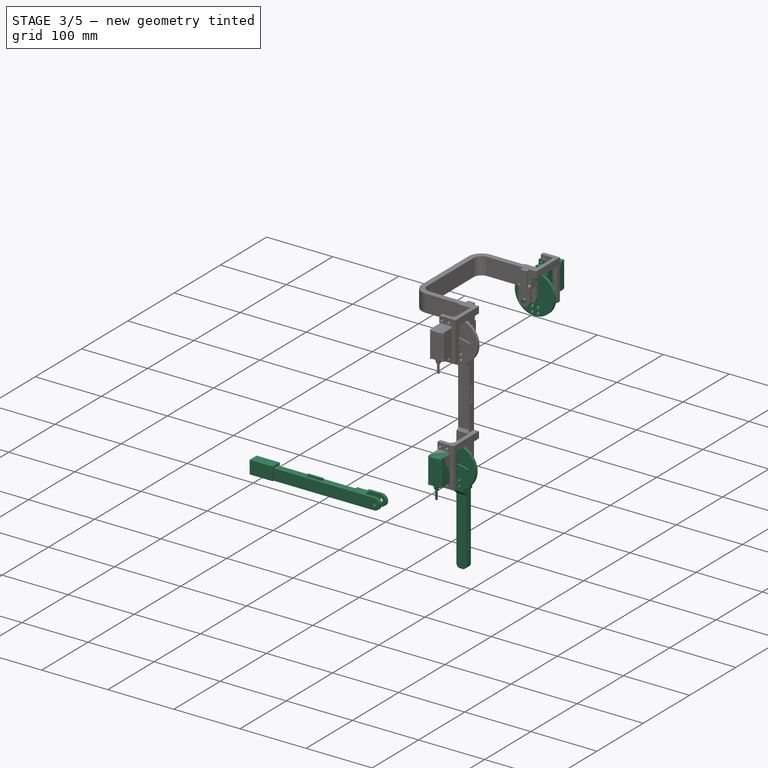
[diagram: stage 3 of 5 — iso view after this stage's code; geometry added in this stage tinted green]
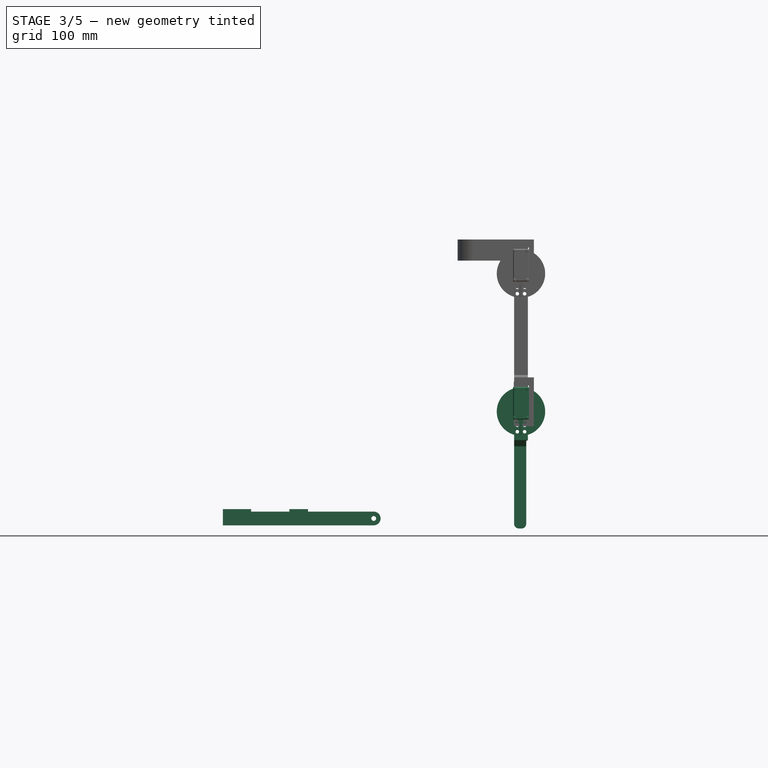
[diagram: stage 3 of 5 — front view after this stage's code; geometry added in this stage tinted green]
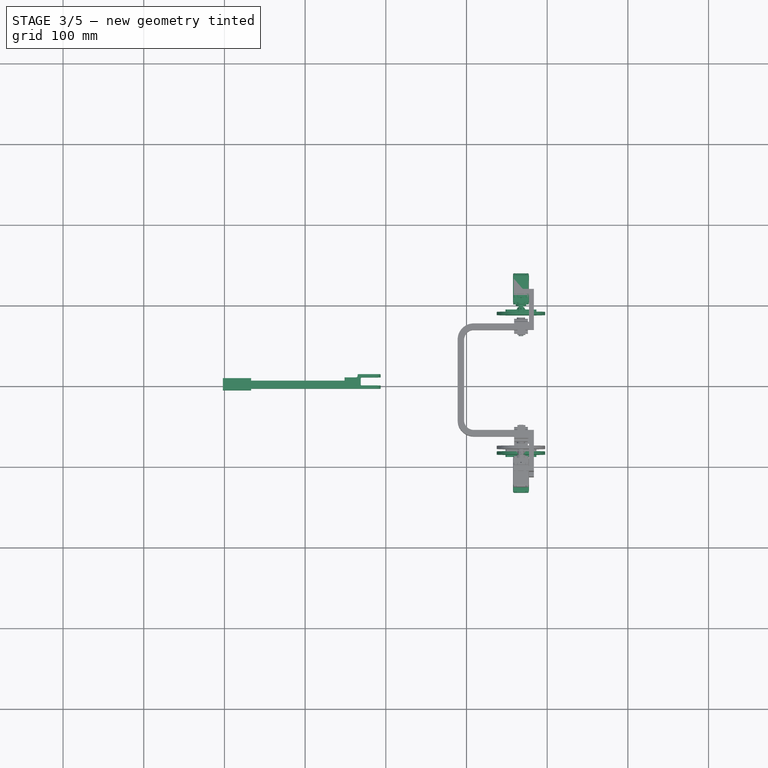
[diagram: stage 3 of 5 — top view after this stage's code; geometry added in this stage tinted green]
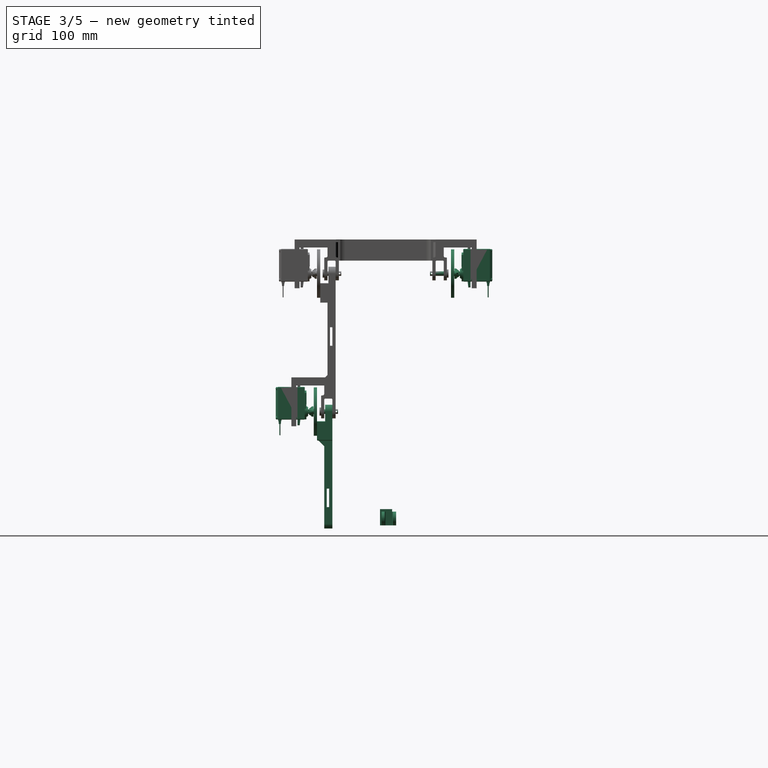
[diagram: stage 3 of 5 — right view after this stage's code; geometry added in this stage tinted green]
FEATURE [Part::Box] Box008  label="Base_femur"
  Height = 17
  Length = 167
  Placement = pos=(0,-3,0) rot=(0,0,1;0rad)
  Width = 10
FEATURE [Part::Box] Box010  label="Cubo_gancho"
  Height = 10
  Length = 20
  Placement = pos=(-16,0,4) rot=(0,0,1;0rad)
  Width = 17
FEATURE [Sketcher::SketchObject] Sketch  label="Boceto_gancho"
  sketch-geometry (5):
    g0: LineSegment StartX=0 StartY=17 StartZ=0 EndX=20 EndY=17 EndZ=0
    g1: LineSegment StartX=20 StartY=0 StartZ=0 EndX=0 EndY=0 EndZ=0
    g2: LineSegment StartX=0 StartY=0 StartZ=0 EndX=0 EndY=17 EndZ=0
    g3: ArcOfCircle CenterX=20 CenterY=8.5 CenterZ=0 NormalX=0 NormalY=0 NormalZ=1 Radius=8.5 StartAngle=4.71239 EndAngle=7.85398
    g4: Circle CenterX=20 CenterY=8.5 CenterZ=0 NormalX=0 NormalY=0 NormalZ=1 Radius=3
  constraints (14):
    c: Coincident(g1,g2)
    c: Coincident(g2,g0)
    c: Horizontal(g0)
    c: Horizontal(g1)
    c: Vertical(g2)
    c: DistanceY(g2,g2) = 17
    c: DistanceX(g0,g0) = 20
    c: Equal(g0,g1)
    c: Coincident(g3,g0)
    c: Coincident(g3,g1)
    c: Coincident(g-1,g1)
    c: Coincident(g4,g3)
    c: Radius(g3) = 8.5
    c: Radius(g4) = 3
FEATURE [PartDesign::Pad] Pad  label="Ciculo_gancho1"
  Length = 4
  Length2 = 100
  Sketch = -> Sketch
  Type = 0
FEATURE [Sketcher::SketchObject] Sketch001  label="Boceto_gancho1"
  Placement = pos=(0,0,14) rot=(0,0,1;0rad)
  sketch-geometry (5):
    g0: LineSegment StartX=0 StartY=17 StartZ=0 EndX=20 EndY=17 EndZ=0
    g1: LineSegment StartX=20 StartY=0 StartZ=0 EndX=0 EndY=0 EndZ=0
    g2: LineSegment StartX=0 StartY=0 StartZ=0 EndX=0 EndY=17 EndZ=0
    g3: ArcOfCircle CenterX=20 CenterY=8.5 CenterZ=0 NormalX=0 NormalY=0 NormalZ=1 Radius=8.5 StartAngle=4.71239 EndAngle=7.85398
    g4: Circle CenterX=20 CenterY=8.5 CenterZ=0 NormalX=0 NormalY=0 NormalZ=1 Radius=3
  constraints (14):
    c: Coincident(g1,g2)
    c: Coincident(g2,g0)
    c: Horizontal(g0)
    c: Horizontal(g1)
    c: Vertical(g2)
    c: DistanceY(g2,g2) = 17
    c: DistanceX(g0,g0) = 20
    c: Equal(g0,g1)
    c: Coincident(g3,g0)
    c: Coincident(g3,g1)
    c: Coincident(g-1,g1)
    c: Coincident(g4,g3)
    c: Radius(g4) = 3
    c: Radius(g3) = 8.5
FEATURE [PartDesign::Pad] Pad001  label="Ciculo_gancho2"
  Length = 4
  Length2 = 100
  Placement = pos=(0,0,14) rot=(0,0,1;0rad)
  Sketch = -> Sketch001
  Type = 0
FEATURE [Part::MultiFuse] Fusion006  label="Gancho"
  Shapes = -> [Box010,Pad,Pad001]
FEATURE [Part::Fillet] Fillet001  label="Gancho_redondeo"
  Base = -> Fusion006
  Edges = 4 edges r=1: [Edge10,Edge27,Edge28,Edge34]
  Placement = pos=(16,15,0) rot=(1,0,0;1.5708rad)
FEATURE [Part::Fillet] Fillet002  label="Gancho_femur"
  Base = -> Fillet001
  Edges = 4 edges: [Edge36 r=2,Edge37 r=1,Edge41 r=1,Edge47 r=2]
  Placement = pos=(149,0,0) rot=(0,0,1;0rad)
FEATURE [Part::Box] Box014  label="Agarre"
  Height = 20
  Length = 23
  Placement = pos=(80.5,1,0) rot=(0,0,1;0rad)
  Width = 3
FEATURE [Part::Box] Box023  label="resta_redondeo_punta"
  Height = 20
  Length = 35
  Placement = pos=(-2,-5,0) rot=(0,0,1;0rad)
  Width = 15
FEATURE [Part::Feature] Part__Feature026  label="TOWER PRO MG-995, ANALOG SERVO, BODY, BOTTOM002"
  Placement = pos=(-10.275,40.78,0) rot=(0.707107,0,-0.707107;3.14159rad)
  shape: bbox 40.6 x 6.4 x 19.8 mm, 74 faces (baked)
FEATURE [Part::Feature] Part__Feature027  label="TOWER PRO MG-995, ANALOG SERVO, BODY, MIDDLE002"
  Placement = pos=(-10.275,30.53,0) rot=(0.707107,0,-0.707107;3.14159rad)
  shape: bbox 40.6 x 20.5 x 19.8 mm, 10 faces (baked)
FEATURE [Part::Feature] Part__Feature028  label="TOWER PRO MG-995, ANALOG SERVO, BODY, TOP002"
  Placement = pos=(-10.275,20.28,0) rot=(0.707107,0,-0.707107;3.14159rad)
  shape: bbox 54.6 x 13.2 x 19.8 mm, 91 faces (baked)
FEATURE [Part::Feature] Part__Feature029  label="TOWER PRO MG-995, ANALOG SERVO, CONNECTOR008"
  Placement = pos=(10.025,42.0947,0) rot=(0.707107,0,-0.707107;3.14159rad)
  shape: bbox 5.4 x 4.1 x 6.8 mm, 15 faces (baked)
FEATURE [Part::Feature] Part__Feature030  label="TOWER PRO MG-995, ANALOG SERVO, CONNECTOR009"
  Placement = pos=(10.025,42.0947,0) rot=(0.707107,0,-0.707107;3.14159rad)
  shape: bbox 14 x 1.2 x 1.2 mm, 4 faces (baked)
FEATURE [Part::Feature] Part__Feature031  label="TOWER PRO MG-995, ANALOG SERVO, CONNECTOR010"
  Placement = pos=(10.025,42.0947,0) rot=(0.707107,0,-0.707107;3.14159rad)
  shape: bbox 14 x 1.2 x 1.2 mm, 4 faces (baked)
FEATURE [Part::Feature] Part__Feature032  label="TOWER PRO MG-995, ANALOG SERVO, CONNECTOR011"
  Placement = pos=(10.025,42.0947,0) rot=(0.707107,0,-0.707107;3.14159rad)
  shape: bbox 14 x 1.2 x 1.2 mm, 4 faces (baked)
FEATURE [Part::Feature] Part__Feature033  label="TOWER PRO MG-995, ANALOG SERVO, SHAFT002"
  Placement = pos=(0.025,20.28,0) rot=(0.70883,0,0.705379;3.14159rad)
  shape: bbox 5.8 x 17.5 x 5.79 mm, 191 faces (baked)
FEATURE [Part::Feature] Part__Feature034  label="TOWER PRO MG-995, ANALOG SERVO, HORN002"
  Placement = pos=(0,5.78,-0.025) rot=(0.00244,0,0.999997;3.14159rad)
  shape: bbox 12.7 x 5.75 x 38.36 mm, 132 faces (baked)
FEATURE [Part::Feature] Part__Feature035  label="pan cross head_am_B18.6.7M - M2 x 0.4 x 10 Type I Cross Recessed PHMS --10N008"
  Placement = pos=(-28.375,47.28,7.7) rot=(-0.57735,0.57735,0.57735;4.18879rad)
  shape: bbox 4.33 x 11.6 x 4.33 mm, 23 faces (baked)
FEATURE [Part::Feature] Part__Feature036  label="pan cross head_am_B18.6.7M - M2 x 0.4 x 10 Type I Cross Recessed PHMS --10N009"
  Placement = pos=(-28.375,47.28,-7.7) rot=(-0.57735,0.57735,0.57735;4.18879rad)
  shape: bbox 4.33 x 11.6 x 4.33 mm, 23 faces (baked)
FEATURE [Part::Feature] Part__Feature037  label="pan cross head_am_B18.6.7M - M2 x 0.4 x 10 Type I Cross Recessed PHMS --10N010"
  Placement = pos=(7.825,47.28,-7.7) rot=(-0.57735,0.57735,0.57735;4.18879rad)
  shape: bbox 4.33 x 11.6 x 4.33 mm, 23 faces (baked)
FEATURE [Part::Feature] Part__Feature038  label="pan cross head_am_B18.6.7M - M2 x 0.4 x 10 Type I Cross Recessed PHMS --10N011"
  Placement = pos=(7.825,47.28,7.7) rot=(-0.57735,0.57735,0.57735;4.18879rad)
  shape: bbox 4.33 x 11.6 x 4.33 mm, 23 faces (baked)
FEATURE [Part::MultiFuse] Fusion009003018  label="Servo_MG996R_1"
  Placement = pos=(367.5,87,312) rot=(0,1,0;1.5708rad)
  Shapes = -> [Part__Feature026,Part__Feature027,Part__Feature028,Part__Feature029,Part__Feature030,Part__Feature031,Part__Feature032,Part__Feature033,Part__Feature034,Part__Feature035,Part__Feature036,Part__Feature037,Part__Feature038]
FEATURE [Part::Cylinder] Cylinder032  label="Eje001"
  Angle = 360
  Height = 21
  Placement = pos=(0,0,2) rot=(0,0,1;0rad)
  Radius = 2.8
FEATURE [Part::Cylinder] Cylinder033  label="Tope_eje001"
  Angle = 360
  Height = 2
  Radius = 5
FEATURE [Sketcher::SketchObject] Sketch017  label="Pin_eje001"
  Placement = pos=(0,4.2,21) rot=(1,0,0;1.5708rad)
  sketch-geometry (1):
    g0: Circle CenterX=0 CenterY=0 CenterZ=0 NormalX=0 NormalY=0 NormalZ=1 Radius=1
  constraints (2):
    c: Coincident(g0,g-1)
    c: Radius(g0) = 1
FEATURE [PartDesign::Pad] Pad017
  Length = 10
  Length2 = 100
  Placement = pos=(0,4.2,21) rot=(1,0,0;1.5708rad)
  Sketch = -> Sketch017
  Type = 0
FEATURE [Part::MultiFuse] Fusion009003019  label="Eje_con_tope001"
  Shapes = -> [Cylinder033,Cylinder032]
FEATURE [Part::Cut] Cut015  label="Eje_full1"
  Base = -> Fusion009003019
  Placement = pos=(367.5,80,312) rot=(0.57735,0.57735,-0.57735;2.0944rad)
  Tool = -> Pad017
FEATURE [Part::Cylinder] Cylinder034  label="Circulo_traccion001"
  Angle = 360
  Height = 4
  Placement = pos=(185,20,8.5) rot=(-1,0,0;1.5708rad)
  Radius = 30
FEATURE [Part::Cylinder] Cylinder035  label="Taladro_suje_traccion003"
  Angle = 360
  Height = 26
  Placement = pos=(202,0,4) rot=(-1,0,0;1.5708rad)
  Radius = 2.2
FEATURE [Part::FeaturePython] Array005  label="Taladros_suje_traccion003"  # Draft array (typed FeaturePython)
  Angle = 360
  ArrayType = 0
  Axis = (0,0,1)
  Base = -> Cylinder035
  Center = (0,0,0)
  Fuse = false
  IntervalAxis = (0,0,0)
  IntervalX = (8,0,0)
  IntervalY = (0,1,0)
  IntervalZ = (0,0,9)
  NumberPolar = 1
  NumberX = 2
  NumberY = 1
  NumberZ = 2
FEATURE [Part::Cut] Cut016  label="Traccion001"
  Base = -> Cylinder034
  Placement = pos=(359,63,497) rot=(0,1,0;1.5708rad)
  Tool = -> Array005
FEATURE [Part::Box] Box030  label="Base_tibia001"
  Height = 15
  Length = 130
  Placement = pos=(200,1.5,0) rot=(0,0,1;0rad)
  Width = 10
FEATURE [Sketcher::SketchObject] Sketch026  label="Boceto_tibia_gancho002"
  Placement = pos=(221,10.5,0) rot=(1,0,0;1.5708rad)
  sketch-geometry (5):
    g0: LineSegment StartX=0 StartY=17 StartZ=0 EndX=-36 EndY=17 EndZ=0
    g1: LineSegment StartX=-36 StartY=1.3e-11 StartZ=0 EndX=0 EndY=1.3e-11 EndZ=0
    g2: LineSegment StartX=0 StartY=1.3e-11 StartZ=0 EndX=0 EndY=17 EndZ=0
    g3: ArcOfCircle CenterX=-36 CenterY=8.5 CenterZ=0 NormalX=0 NormalY=0 NormalZ=1 Radius=8.5 StartAngle=1.57079 EndAngle=4.71239
    g4: Circle CenterX=-36 CenterY=8.5 CenterZ=0 NormalX=0 NormalY=0 NormalZ=1 Radius=3
  constraints (14):
    c: Coincident(g1,g2)
    c: Coincident(g2,g0)
    c: Horizontal(g0)
    c: Horizontal(g1)
    c: Vertical(g2)
    c: Coincident(g3,g0)
    c: DistanceX(g0,g0) = 36
    c: DistanceY(g2,g2) = 17
    c: Radius(g3) = 8.5
    c: Equal(g0,g1)
    c: Coincident(g3,g1)
    c: Coincident(g1,g-1)
    c: Coincident(g4,g3)
    c: Radius(g4) = 3
FEATURE [PartDesign::Pad] Pad026  label="Circulo_tibia_gancho002"
  Length = 9
  Length2 = 100
  Placement = pos=(221,10.5,0) rot=(1,0,0;1.5708rad)
  Sketch = -> Sketch026
  Type = 0
FEATURE [Part::Cylinder] Cylinder038  label="Eje002"
  Angle = 360
  Height = 21
  Placement = pos=(0,0,2) rot=(0,0,1;0rad)
  Radius = 2.8
FEATURE [Part::Fillet] Fillet011  label="Tibia_gancho_redondeado001"
  Base = -> Pad026
  Edges = 2 edges r=1: [Edge1,Edge8]
FEATURE [Part::MultiFuse] Fusion009003030  label="Tibia_gancho001"
  Placement = pos=(0,-0.5,0) rot=(0,0,1;0rad)
  Shapes = -> [Fillet011,Box030]
FEATURE [Part::Cylinder] Cylinder039  label="Tope_eje002"
  Angle = 360
  Height = 2
  Radius = 5
FEATURE [Sketcher::SketchObject] Sketch027  label="Pin_eje002"
  Placement = pos=(0,4.2,21) rot=(1,0,0;1.5708rad)
  sketch-geometry (1):
    g0: Circle CenterX=0 CenterY=0 CenterZ=0 NormalX=0 NormalY=0 NormalZ=1 Radius=1
  constraints (2):
    c: Coincident(g0,g-1)
    c: Radius(g0) = 1
FEATURE [PartDesign::Pad] Pad027
  Length = 10
  Length2 = 100
  Placement = pos=(0,4.2,21) rot=(1,0,0;1.5708rad)
  Sketch = -> Sketch027
  Type = 0
FEATURE [Part::MultiFuse] Fusion009003031  label="Eje_con_tope002"
  Shapes = -> [Cylinder039,Cylinder038]
FEATURE [Part::Cut] Cut021  label="Eje_full002"
  Base = -> Fusion009003031
  Placement = pos=(185,17,8.5) rot=(1,0,0;1.5708rad)
  Tool = -> Pad027
FEATURE [Part::Feature] Part__Feature039  label="TOWER PRO MG-995, ANALOG SERVO, BODY, BOTTOM003"
  Placement = pos=(-10.275,40.78,0) rot=(0.707107,0,-0.707107;3.14159rad)
  shape: bbox 40.6 x 6.4 x 19.8 mm, 74 faces (baked)
FEATURE [Part::Feature] Part__Feature040  label="TOWER PRO MG-995, ANALOG SERVO, BODY, MIDDLE003"
  Placement = pos=(-10.275,30.53,0) rot=(0.707107,0,-0.707107;3.14159rad)
  shape: bbox 40.6 x 20.5 x 19.8 mm, 10 faces (baked)
FEATURE [Part::Feature] Part__Feature041  label="TOWER PRO MG-995, ANALOG SERVO, BODY, TOP003"
  Placement = pos=(-10.275,20.28,0) rot=(0.707107,0,-0.707107;3.14159rad)
  shape: bbox 54.6 x 13.2 x 19.8 mm, 91 faces (baked)
FEATURE [Part::Feature] Part__Feature042  label="TOWER PRO MG-995, ANALOG SERVO, CONNECTOR012"
  Placement = pos=(10.025,42.0947,0) rot=(0.707107,0,-0.707107;3.14159rad)
  shape: bbox 5.4 x 4.1 x 6.8 mm, 15 faces (baked)
FEATURE [Part::Feature] Part__Feature043  label="TOWER PRO MG-995, ANALOG SERVO, CONNECTOR013"
  Placement = pos=(10.025,42.0947,0) rot=(0.707107,0,-0.707107;3.14159rad)
  shape: bbox 14 x 1.2 x 1.2 mm, 4 faces (baked)
FEATURE [Part::Feature] Part__Feature044  label="TOWER PRO MG-995, ANALOG SERVO, CONNECTOR014"
  Placement = pos=(10.025,42.0947,0) rot=(0.707107,0,-0.707107;3.14159rad)
  shape: bbox 14 x 1.2 x 1.2 mm, 4 faces (baked)
FEATURE [Part::Feature] Part__Feature045  label="TOWER PRO MG-995, ANALOG SERVO, CONNECTOR015"
  Placement = pos=(10.025,42.0947,0) rot=(0.707107,0,-0.707107;3.14159rad)
  shape: bbox 14 x 1.2 x 1.2 mm, 4 faces (baked)
FEATURE [Part::Feature] Part__Feature046  label="TOWER PRO MG-995, ANALOG SERVO, SHAFT003"
  Placement = pos=(0.025,20.28,0) rot=(0.70883,0,0.705379;3.14159rad)
  shape: bbox 5.8 x 17.5 x 5.79 mm, 191 faces (baked)
FEATURE [Part::Feature] Part__Feature047  label="TOWER PRO MG-995, ANALOG SERVO, HORN003"
  Placement = pos=(0,5.78,-0.025) rot=(0.00244,0,0.999997;3.14159rad)
  shape: bbox 12.7 x 5.75 x 38.36 mm, 132 faces (baked)
FEATURE [Part::Feature] Part__Feature048  label="pan cross head_am_B18.6.7M - M2 x 0.4 x 10 Type I Cross Recessed PHMS --10N012"
  Placement = pos=(-28.375,47.28,7.7) rot=(-0.57735,0.57735,0.57735;4.18879rad)
  shape: bbox 4.33 x 11.6 x 4.33 mm, 23 faces (baked)
FEATURE [Part::Feature] Part__Feature049  label="pan cross head_am_B18.6.7M - M2 x 0.4 x 10 Type I Cross Recessed PHMS --10N013"
  Placement = pos=(-28.375,47.28,-7.7) rot=(-0.57735,0.57735,0.57735;4.18879rad)
  shape: bbox 4.33 x 11.6 x 4.33 mm, 23 faces (baked)
FEATURE [Part::Feature] Part__Feature050  label="pan cross head_am_B18.6.7M - M2 x 0.4 x 10 Type I Cross Recessed PHMS --10N014"
  Placement = pos=(7.825,47.28,-7.7) rot=(-0.57735,0.57735,0.57735;4.18879rad)
  shape: bbox 4.33 x 11.6 x 4.33 mm, 23 faces (baked)
FEATURE [Part::Feature] Part__Feature051  label="pan cross head_am_B18.6.7M - M2 x 0.4 x 10 Type I Cross Recessed PHMS --10N015"
  Placement = pos=(7.825,47.28,7.7) rot=(-0.57735,0.57735,0.57735;4.18879rad)
  shape: bbox 4.33 x 11.6 x 4.33 mm, 23 faces (baked)
FEATURE [Part::MultiFuse] Fusion009003032  label="Servo_MG996R001"
  Placement = pos=(185,24,8.5) rot=(0,0,1;0rad)
  Shapes = -> [Part__Feature039,Part__Feature040,Part__Feature041,Part__Feature042,Part__Feature043,Part__Feature044,Part__Feature045,Part__Feature046,Part__Feature047,Part__Feature048,Part__Feature049,Part__Feature050,Part__Feature051]
FEATURE [Part::Cylinder] Cylinder041  label="Circulo_traccion002"
  Angle = 360
  Height = 4
  Placement = pos=(185,20,8.5) rot=(-1,0,0;1.5708rad)
  Radius = 30
FEATURE [Part::Box] Box031  label="Suj_traccion002"
  Height = 17
  Length = 24
  Placement = pos=(197,10,0) rot=(0,0,1;0rad)
  Width = 10
FEATURE [Part::Fillet] Fillet012  label="Suje_traccion001"
  Base = -> Box031
  Edges = 4 edges r=1: [Edge2,Edge4,Edge6,Edge7]
FEATURE [Part::Cut] Cut024  label="Tibia_agarre001"
  Base = -> Fusion009003030
  Tool = -> Box033
FEATURE [Part::MultiFuse] Fusion009003035  label="Tibia_suje_traccion001"
  Shapes = -> [Fillet012,Cut024]
FEATURE [Part::Chamfer] Chamfer002  label="Tibia_refuerzo001"
  Base = -> Fusion009003035
  Edges = 1 edges r=7: [Edge4]
FEATURE [Part::Cut] Cut025  label="Tibia001"
  Base = -> Chamfer002
  Tool = -> Array009
FEATURE [Part::Cylinder] Cylinder043  label="Taladro_suje_traccion005"
  Angle = 360
  Height = 26
  Placement = pos=(202,0,4) rot=(-1,0,0;1.5708rad)
  Radius = 2.2
FEATURE [Part::FeaturePython] Array010  label="Taladros_suje_traccion005"  # Draft array (typed FeaturePython)
  Angle = 360
  ArrayType = 0
  Axis = (0,0,1)
  Base = -> Cylinder043
  Center = (0,0,0)
  Fuse = false
  IntervalAxis = (0,0,0)
  IntervalX = (8,0,0)
  IntervalY = (0,1,0)
  IntervalZ = (0,0,9)
  NumberPolar = 1
  NumberX = 2
  NumberY = 1
  NumberZ = 2
FEATURE [Part::Cut] Cut026  label="Traccion002"
  Base = -> Cylinder041
  Tool = -> Array010
FEATURE [Part::Fillet] Fillet013  label="Tibia_redondeada001"
  Base = -> Cut025
  Edges = 2 edges r=6: [Edge9,Edge21]
FEATURE [Part::Mirroring] Part__Mirroring001  label="Eje_full002 (Mirror #2)"
  Base = (0,0,0)
  Normal = (0,1,0)
  Placement = pos=(359,-63,326) rot=(0,1,0;1.5708rad)
  Source = -> Cut021
FEATURE [Part::Mirroring] Part__Mirroring002  label="Servo_MG996R001 (Mirror #3)"
  Base = (0,0,0)
  Normal = (0,1,0)
  Placement = pos=(359,-63,326) rot=(0,1,0;1.5708rad)
  Source = -> Fusion009003032
FEATURE [Part::Mirroring] Part__Mirroring003  label="Traccion002 (Mirror #4)"
  Base = (0,0,0)
  Normal = (0,1,0)
  Placement = pos=(359,-63,326) rot=(0,1,0;1.5708rad)
  Source = -> Cut026
FEATURE [Part::Mirroring] Part__Mirroring004  label="Tibia_redondeada001 (Mirror #5)"
  Base = (0,0,0)
  Normal = (0,1,0)
  Placement = pos=(359,-63,326) rot=(0,1,0;1.5708rad)
  Source = -> Fillet013
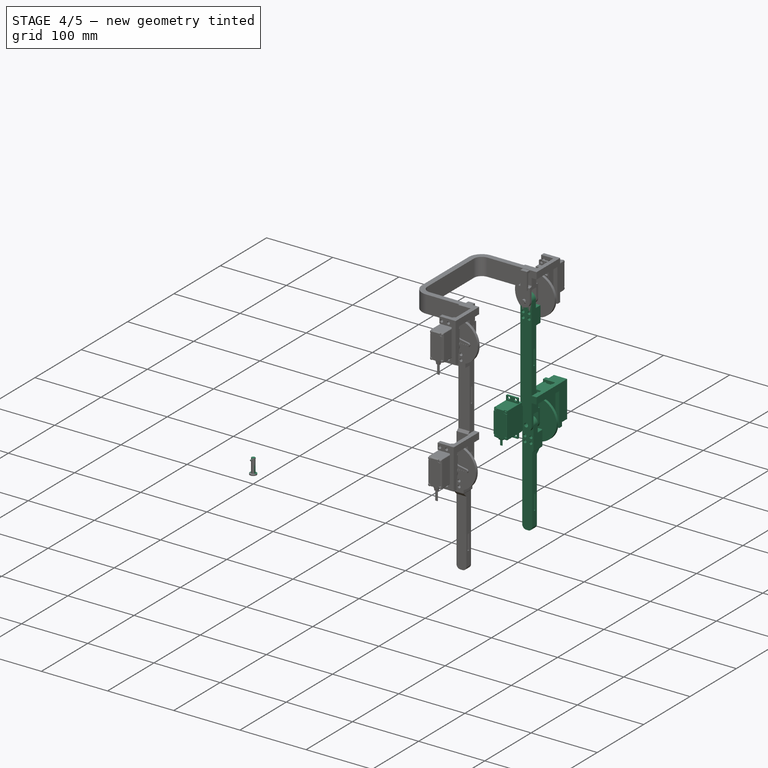
[diagram: stage 4 of 5 — iso view after this stage's code; geometry added in this stage tinted green]
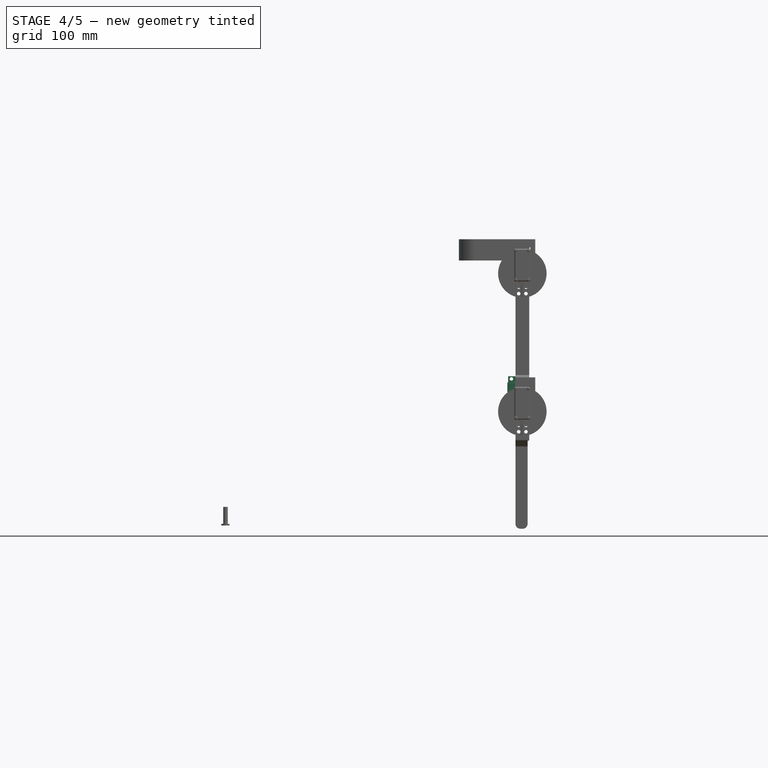
[diagram: stage 4 of 5 — front view after this stage's code; geometry added in this stage tinted green]
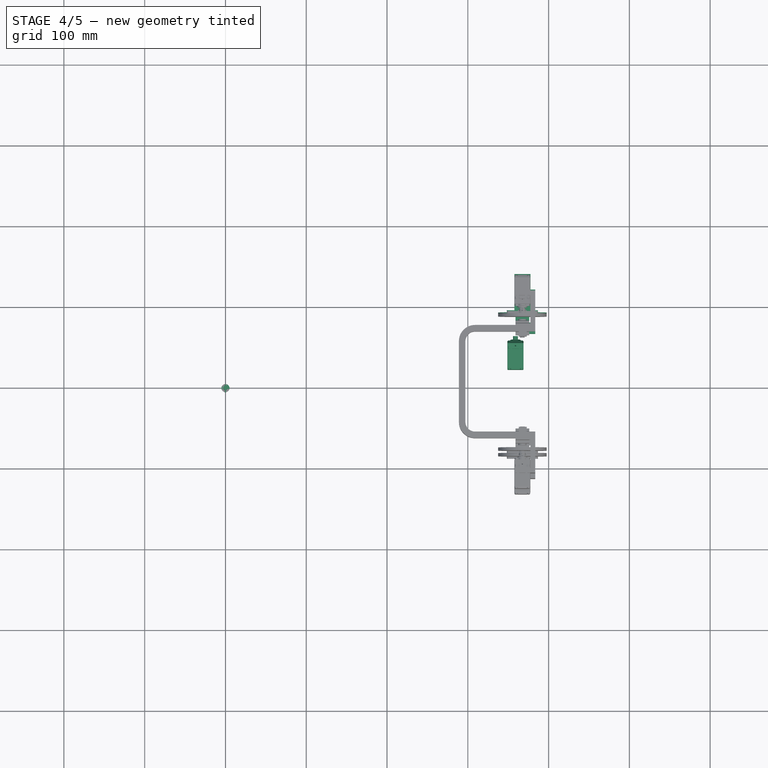
[diagram: stage 4 of 5 — top view after this stage's code; geometry added in this stage tinted green]
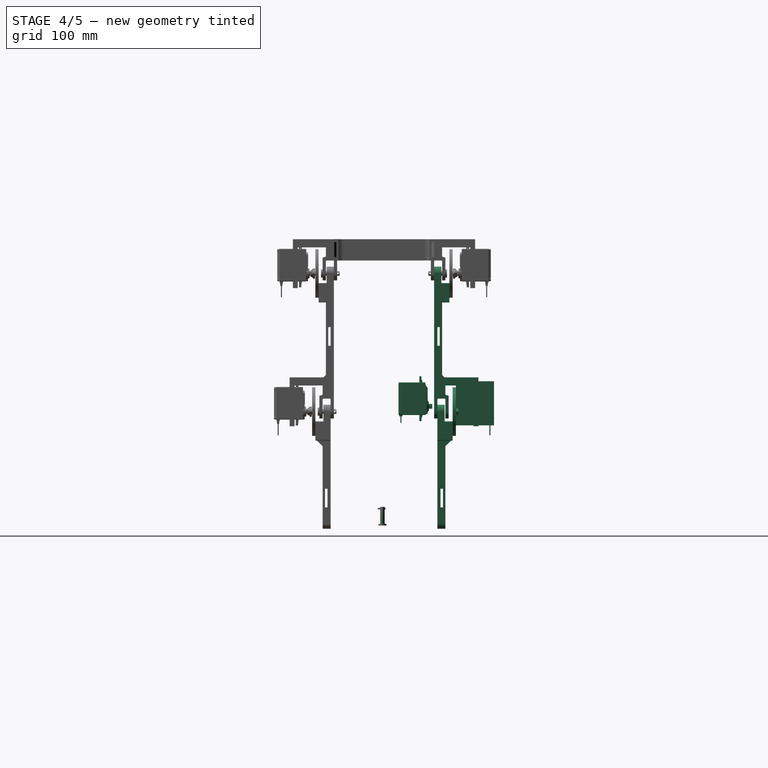
[diagram: stage 4 of 5 — right view after this stage's code; geometry added in this stage tinted green]
FEATURE [Part::MultiFuse] Fusion007  label="Femur_gancho"
  Shapes = -> [Box008,Fillet002]
FEATURE [Part::Box] Box011  label="Base_tibia"
  Height = 15
  Length = 130
  Placement = pos=(200,1.5,0) rot=(0,0,1;0rad)
  Width = 10
FEATURE [Sketcher::SketchObject] Sketch003  label="Boceto_tibia_gancho"
  Placement = pos=(221,10.5,0) rot=(1,0,0;1.5708rad)
  sketch-geometry (5):
    g0: LineSegment StartX=0 StartY=17 StartZ=0 EndX=-36 EndY=17 EndZ=0
    g1: LineSegment StartX=-36 StartY=1.3e-11 StartZ=0 EndX=0 EndY=1.3e-11 EndZ=0
    g2: LineSegment StartX=0 StartY=1.3e-11 StartZ=0 EndX=0 EndY=17 EndZ=0
    g3: ArcOfCircle CenterX=-36 CenterY=8.5 CenterZ=0 NormalX=0 NormalY=0 NormalZ=1 Radius=8.5 StartAngle=1.57079 EndAngle=4.71239
    g4: Circle CenterX=-36 CenterY=8.5 CenterZ=0 NormalX=0 NormalY=0 NormalZ=1 Radius=3
  constraints (14):
    c: Coincident(g1,g2)
    c: Coincident(g2,g0)
    c: Horizontal(g0)
    c: Horizontal(g1)
    c: Vertical(g2)
    c: Coincident(g3,g0)
    c: DistanceX(g0,g0) = 36
    c: DistanceY(g2,g2) = 17
    c: Radius(g3) = 8.5
    c: Equal(g0,g1)
    c: Coincident(g3,g1)
    c: Coincident(g1,g-1)
    c: Coincident(g4,g3)
    c: Radius(g4) = 3
FEATURE [PartDesign::Pad] Pad003  label="Circulo_tibia_gancho"
  Length = 9
  Length2 = 100
  Placement = pos=(221,10.5,0) rot=(1,0,0;1.5708rad)
  Sketch = -> Sketch003
  Type = 0
FEATURE [Part::Cylinder] Cylinder009  label="Eje"
  Angle = 360
  Height = 21
  Placement = pos=(0,0,2) rot=(0,0,1;0rad)
  Radius = 2.8
FEATURE [Part::Fillet] Fillet003  label="Tibia_gancho_redondeado"
  Base = -> Pad003
  Edges = 2 edges r=1: [Edge1,Edge8]
FEATURE [Part::MultiFuse] Fusion008  label="Tibia_gancho"
  Placement = pos=(0,-0.5,0) rot=(0,0,1;0rad)
  Shapes = -> [Fillet003,Box011]
FEATURE [Part::Cylinder] Cylinder010  label="Tope_eje"
  Angle = 360
  Height = 2
  Radius = 5
FEATURE [Sketcher::SketchObject] Sketch004  label="Pin_eje"
  Placement = pos=(0,4.2,21) rot=(1,0,0;1.5708rad)
  sketch-geometry (1):
    g0: Circle CenterX=0 CenterY=0 CenterZ=0 NormalX=0 NormalY=0 NormalZ=1 Radius=1
  constraints (2):
    c: Coincident(g0,g-1)
    c: Radius(g0) = 1
FEATURE [PartDesign::Pad] Pad004
  Length = 10
  Length2 = 100
  Placement = pos=(0,4.2,21) rot=(1,0,0;1.5708rad)
  Sketch = -> Sketch004
  Type = 0
FEATURE [Part::MultiFuse] Fusion009  label="Eje_con_tope"
  Shapes = -> [Cylinder010,Cylinder009]
FEATURE [Part::Feature] Fusion009002001  label="Servo-Futaba3003-final001"
  shape: bbox 55.5 x 20 x 41.74 mm, 365 faces (baked)
FEATURE [Part::Feature] Fusion009003001  label="servo-wires001"
  Placement = pos=(20,0,2.9) rot=(0,0,1;0rad)
  shape: bbox 10 x 3.6 x 1.2 mm, 13 faces, 3 solids (baked)
FEATURE [Part::Compound] Compound  label="Servo-Futaba-3003-ready"
  Links = -> [Fusion009002001,Fusion009003001]
  Placement = pos=(359,20,157) rot=(0.57735,-0.57735,-0.57735;4.18879rad)
FEATURE [Part::Feature] Part__Feature013  label="TOWER PRO MG-995, ANALOG SERVO, BODY, BOTTOM001"
  Placement = pos=(-10.275,40.78,0) rot=(0.707107,0,-0.707107;3.14159rad)
  shape: bbox 40.6 x 6.4 x 19.8 mm, 74 faces (baked)
FEATURE [Part::Feature] Part__Feature014  label="TOWER PRO MG-995, ANALOG SERVO, BODY, MIDDLE001"
  Placement = pos=(-10.275,30.53,0) rot=(0.707107,0,-0.707107;3.14159rad)
  shape: bbox 40.6 x 20.5 x 19.8 mm, 10 faces (baked)
FEATURE [Part::Feature] Part__Feature015  label="TOWER PRO MG-995, ANALOG SERVO, BODY, TOP001"
  Placement = pos=(-10.275,20.28,0) rot=(0.707107,0,-0.707107;3.14159rad)
  shape: bbox 54.6 x 13.2 x 19.8 mm, 91 faces (baked)
FEATURE [Part::Feature] Part__Feature016  label="TOWER PRO MG-995, ANALOG SERVO, CONNECTOR004"
  Placement = pos=(10.025,42.0947,0) rot=(0.707107,0,-0.707107;3.14159rad)
  shape: bbox 5.4 x 4.1 x 6.8 mm, 15 faces (baked)
FEATURE [Part::Feature] Part__Feature017  label="TOWER PRO MG-995, ANALOG SERVO, CONNECTOR005"
  Placement = pos=(10.025,42.0947,0) rot=(0.707107,0,-0.707107;3.14159rad)
  shape: bbox 14 x 1.2 x 1.2 mm, 4 faces (baked)
FEATURE [Part::Feature] Part__Feature018  label="TOWER PRO MG-995, ANALOG SERVO, CONNECTOR006"
  Placement = pos=(10.025,42.0947,0) rot=(0.707107,0,-0.707107;3.14159rad)
  shape: bbox 14 x 1.2 x 1.2 mm, 4 faces (baked)
FEATURE [Part::Feature] Part__Feature019  label="TOWER PRO MG-995, ANALOG SERVO, CONNECTOR007"
  Placement = pos=(10.025,42.0947,0) rot=(0.707107,0,-0.707107;3.14159rad)
  shape: bbox 14 x 1.2 x 1.2 mm, 4 faces (baked)
FEATURE [Part::Feature] Part__Feature020  label="TOWER PRO MG-995, ANALOG SERVO, SHAFT001"
  Placement = pos=(0.025,20.28,0) rot=(0.70883,0,0.705379;3.14159rad)
  shape: bbox 5.8 x 17.5 x 5.79 mm, 191 faces (baked)
FEATURE [Part::Feature] Part__Feature021  label="TOWER PRO MG-995, ANALOG SERVO, HORN001"
  Placement = pos=(0,5.78,-0.025) rot=(0.00244,0,0.999997;3.14159rad)
  shape: bbox 12.7 x 5.75 x 38.36 mm, 132 faces (baked)
FEATURE [Part::Feature] Part__Feature022  label="pan cross head_am_B18.6.7M - M2 x 0.4 x 10 Type I Cross Recessed PHMS --10N004"
  Placement = pos=(-28.375,47.28,7.7) rot=(-0.57735,0.57735,0.57735;4.18879rad)
  shape: bbox 4.33 x 11.6 x 4.33 mm, 23 faces (baked)
FEATURE [Part::Feature] Part__Feature023  label="pan cross head_am_B18.6.7M - M2 x 0.4 x 10 Type I Cross Recessed PHMS --10N005"
  Placement = pos=(-28.375,47.28,-7.7) rot=(-0.57735,0.57735,0.57735;4.18879rad)
  shape: bbox 4.33 x 11.6 x 4.33 mm, 23 faces (baked)
FEATURE [Part::Feature] Part__Feature024  label="pan cross head_am_B18.6.7M - M2 x 0.4 x 10 Type I Cross Recessed PHMS --10N006"
  Placement = pos=(7.825,47.28,-7.7) rot=(-0.57735,0.57735,0.57735;4.18879rad)
  shape: bbox 4.33 x 11.6 x 4.33 mm, 23 faces (baked)
FEATURE [Part::Feature] Part__Feature025  label="pan cross head_am_B18.6.7M - M2 x 0.4 x 10 Type I Cross Recessed PHMS --10N007"
  Placement = pos=(7.825,47.28,7.7) rot=(-0.57735,0.57735,0.57735;4.18879rad)
  shape: bbox 4.33 x 11.6 x 4.33 mm, 23 faces (baked)
FEATURE [Part::MultiFuse] Fusion009003002  label="Servo_MG996R"
  Placement = pos=(367.5,91,141) rot=(0,1,0;1.5708rad)
  Shapes = -> [Part__Feature013,Part__Feature014,Part__Feature015,Part__Feature016,Part__Feature017,Part__Feature018,Part__Feature019,Part__Feature020,Part__Feature021,Part__Feature022,Part__Feature023,Part__Feature024,Part__Feature025]
FEATURE [Part::Box] Box012  label="Cubo_motor"
  Height = 20
  Length = 54.7
  Placement = pos=(357.6,91,178.6) rot=(0,1,0;1.5708rad)
  Width = 47.2
FEATURE [Sketcher::SketchObject] Sketch007  label="Boceto_suje_motor1"
  Placement = pos=(0,0,0) rot=(0.57735,0.57735,0.57735;2.0944rad)
  sketch-geometry (8):
    g0: LineSegment StartX=14 StartY=0 StartZ=0 EndX=0 EndY=0 EndZ=0
    g1: LineSegment StartX=0 StartY=0 StartZ=0 EndX=0 EndY=24.5 EndZ=0
    g2: LineSegment StartX=0 StartY=24.5 StartZ=0 EndX=54.8 EndY=24.5 EndZ=0
    g3: LineSegment StartX=54.8 StartY=24.5 StartZ=0 EndX=54.8 EndY=0 EndZ=0
    g4: LineSegment StartX=54.8 StartY=0 StartZ=0 EndX=48.8 EndY=0 EndZ=0
    g5: LineSegment StartX=48.8 StartY=0 StartZ=0 EndX=48.8 EndY=18.5 EndZ=0
    g6: LineSegment StartX=48.8 StartY=18.5 StartZ=0 EndX=14 EndY=18.5 EndZ=0
    g7: LineSegment StartX=14 StartY=18.5 StartZ=0 EndX=14 EndY=0 EndZ=0
  constraints (24):
    c: Horizontal(g0)
    c: Coincident(g0,g1)
    c: Vertical(g1)
    c: Coincident(g1,g2)
    c: Horizontal(g2)
    c: Coincident(g2,g3)
    c: Vertical(g3)
    c: Coincident(g3,g4)
    c: Horizontal(g4)
    c: Coincident(g4,g5)
    c: Vertical(g5)
    c: Coincident(g5,g6)
    c: Horizontal(g6)
    c: Coincident(g6,g7)
    c: Coincident(g7,g0)
    c: Vertical(g7)
    c: DistanceX(g0,g0) = 14
    c: DistanceY(g7,g7) = 18.5
    c: Equal(g7,g5)
    c: DistanceY(g1,g1) = 24.5
    c: Equal(g1,g3)
    c: DistanceX(g6,g6) = 34.8
    c: Coincident(g0,g-1)
    c: DistanceX(g4,g4) = 6
FEATURE [PartDesign::Pad] Pad007  label="Suje_motor1"
  Length = 10
  Length2 = 100
  Placement = pos=(0,0,0) rot=(0.57735,0.57735,0.57735;2.0944rad)
  Sketch = -> Sketch007
  Type = 0
FEATURE [Sketcher::SketchObject] Sketch008  label="Boceto_suje_motor2"
  Placement = pos=(10,54.8,0) rot=(1,0,0;1.5708rad)
  sketch-geometry (6):
    g0: LineSegment StartX=0 StartY=18.5 StartZ=0 EndX=0 EndY=24.5 EndZ=0
    g1: LineSegment StartX=0 StartY=24.5 StartZ=0 EndX=50.5 EndY=24.5 EndZ=0
    g2: LineSegment StartX=50.5 StartY=24.5 StartZ=0 EndX=50.5 EndY=0 EndZ=0
    g3: LineSegment StartX=50.5 StartY=0 StartZ=0 EndX=40.5 EndY=0 EndZ=0
    g4: LineSegment StartX=40.5 StartY=0 StartZ=0 EndX=40.5 EndY=18.5 EndZ=0
    g5: LineSegment StartX=40.5 StartY=18.5 StartZ=0 EndX=0 EndY=18.5 EndZ=0
  constraints (18):
    c: Vertical(g0)
    c: Coincident(g0,g1)
    c: Horizontal(g1)
    c: Coincident(g1,g2)
    c: Vertical(g2)
    c: Coincident(g2,g3)
    c: Horizontal(g3)
    c: Coincident(g3,g4)
    c: Vertical(g4)
    c: Coincident(g4,g5)
    c: Coincident(g5,g0)
    c: Horizontal(g5)
    c: DistanceX(g5,g5) = 40.5
    c: DistanceY(g4,g4) = 18.5
    c: PointOnObject(g3,g-1)
    c: PointOnObject(g0,g-2)
    c: DistanceY(g0,g0) = 6
    c: DistanceX(g3,g3) = 10
FEATURE [PartDesign::Pad] Pad008  label="Suje_motor2"
  Length = 6
  Length2 = 100
  Placement = pos=(10,54.8,0) rot=(1,0,0;1.5708rad)
  Sketch = -> Sketch008
  Type = 0
FEATURE [Part::Cylinder] Cylinder028  label="Taladro_suje_motor"
  Angle = 360
  Height = 18
  Placement = pos=(150.075,41,13.5) rot=(-1,0,0;1.5708rad)
  Radius = 2.2
FEATURE [Part::FeaturePython] Array  label="Taladros_suje_motor"  # Draft array (typed FeaturePython)
  Angle = 360
  ArrayType = 0
  Axis = (0,0,1)
  Base = -> Cylinder028
  Center = (0,0,0)
  Fuse = false
  IntervalAxis = (0,0,0)
  IntervalX = (49.2,0,0)
  IntervalY = (0,1,0)
  IntervalZ = (0,0,-10.3)
  NumberPolar = 1
  NumberX = 2
  NumberY = 1
  NumberZ = 2
FEATURE [Part::MultiFuse] Fusion009003004  label="Suje_motor"
  Placement = pos=(144.425,-3,0) rot=(0,0,1;0rad)
  Shapes = -> [Pad007,Pad008]
FEATURE [Part::Cut] Cut008  label="Sujetador_motor"
  Base = -> Fusion009003004
  Placement = pos=(-1.725,0,0) rot=(0,0,1;0rad)
  Tool = -> Array
FEATURE [Part::Cylinder] Cylinder011  label="Circulo_traccion"
  Angle = 360
  Height = 4
  Placement = pos=(185,20,8.5) rot=(-1,0,0;1.5708rad)
  Radius = 30
FEATURE [Part::Box] Box013  label="Suj_traccion"
  Height = 17
  Length = 24
  Placement = pos=(197,10,0) rot=(0,0,1;0rad)
  Width = 10
FEATURE [Part::Fillet] Fillet  label="Suje_traccion"
  Base = -> Box013
  Edges = 4 edges r=1: [Edge2,Edge4,Edge6,Edge7]
FEATURE [Part::Cut] Cut009  label="Femur_agarre"
  Base = -> Fusion007
  Tool = -> Box014
FEATURE [Part::MultiFuse] Fusion009003007  label="Femur"
  Shapes = -> [Cut008,Cut009]
FEATURE [Part::Box] Box015  label="Agarre1"
  Height = 20
  Length = 23
  Placement = pos=(280.5,5,0) rot=(0,0,1;0rad)
  Width = 3
FEATURE [Part::Cut] Cut010  label="Tibia_agarre"
  Base = -> Fusion008
  Tool = -> Box015
FEATURE [Part::MultiFuse] Fusion009003008  label="Tibia_suje_traccion"
  Shapes = -> [Fillet,Cut010]
FEATURE [Part::Chamfer] Chamfer  label="Tibia_refuerzo"
  Base = -> Fusion009003008
  Edges = 1 edges r=7: [Edge4]
FEATURE [Part::Cylinder] Cylinder029  label="Taladro_suje_traccion"
  Angle = 360
  Height = 26
  Placement = pos=(202,0,4) rot=(-1,0,0;1.5708rad)
  Radius = 2.2
FEATURE [Part::FeaturePython] Array001  label="Taladros_suje_traccion"  # Draft array (typed FeaturePython)
  Angle = 360
  ArrayType = 0
  Axis = (0,0,1)
  Base = -> Cylinder029
  Center = (0,0,0)
  Fuse = false
  IntervalAxis = (0,0,0)
  IntervalX = (8,0,0)
  IntervalY = (0,1,0)
  IntervalZ = (0,0,9)
  NumberPolar = 1
  NumberX = 2
  NumberY = 1
  NumberZ = 2
FEATURE [Part::Cut] Cut011  label="Tibia"
  Base = -> Chamfer
  Tool = -> Array001
FEATURE [Part::Cylinder] Cylinder030  label="Taladro_suje_traccion001"
  Angle = 360
  Height = 26
  Placement = pos=(202,0,4) rot=(-1,0,0;1.5708rad)
  Radius = 2.2
FEATURE [Part::FeaturePython] Array002  label="Taladros_suje_traccion001"  # Draft array (typed FeaturePython)
  Angle = 360
  ArrayType = 0
  Axis = (0,0,1)
  Base = -> Cylinder030
  Center = (0,0,0)
  Fuse = false
  IntervalAxis = (0,0,0)
  IntervalX = (8,0,0)
  IntervalY = (0,1,0)
  IntervalZ = (0,0,9)
  NumberPolar = 1
  NumberX = 2
  NumberY = 1
  NumberZ = 2
FEATURE [Part::Cut] Cut012  label="Traccion"
  Base = -> Cylinder011
  Placement = pos=(359,67,326) rot=(0,1,0;1.5708rad)
  Tool = -> Array002
FEATURE [Part::Fillet] Fillet004  label="Tibia_redondeada"
  Base = -> Cut011
  Edges = 2 edges r=6: [Edge9,Edge21]
  Placement = pos=(359,67,326) rot=(0,1,0;1.5708rad)
FEATURE [Part::Chamfer] Chamfer001  label="Femur_refuerzo"
  Base = -> Fusion009003007
  Edges = 1 edges r=3: [Edge31]
FEATURE [Part::Box] Box022  label="Suj_traccion001"
  Height = 17
  Length = 24
  Placement = pos=(26,6,0) rot=(0,0,1;0rad)
  Width = 10
FEATURE [Sketcher::SketchObject] Sketch016  label="Boceto_tibia_gancho001"
  Placement = pos=(50,6,0) rot=(1,0,0;1.5708rad)
  sketch-geometry (5):
    g0: LineSegment StartX=0 StartY=17 StartZ=0 EndX=-36 EndY=17 EndZ=0
    g1: LineSegment StartX=-36 StartY=1.3e-11 StartZ=0 EndX=0 EndY=1.3e-11 EndZ=0
    g2: LineSegment StartX=0 StartY=1.3e-11 StartZ=0 EndX=0 EndY=17 EndZ=0
    g3: ArcOfCircle CenterX=-36 CenterY=8.5 CenterZ=0 NormalX=0 NormalY=0 NormalZ=1 Radius=8.5 StartAngle=1.57079 EndAngle=4.71239
    g4: Circle CenterX=-36 CenterY=8.5 CenterZ=0 NormalX=0 NormalY=0 NormalZ=1 Radius=3
  constraints (14):
    c: Coincident(g1,g2)
    c: Coincident(g2,g0)
    c: Horizontal(g0)
    c: Horizontal(g1)
    c: Vertical(g2)
    c: Coincident(g3,g0)
    c: DistanceX(g0,g0) = 36
    c: DistanceY(g2,g2) = 17
    c: Radius(g3) = 8.5
    c: Equal(g0,g1)
    c: Coincident(g3,g1)
    c: Coincident(g1,g-1)
    c: Coincident(g4,g3)
    c: Radius(g4) = 3
FEATURE [PartDesign::Pad] Pad016  label="Circulo_tibia_gancho001"
  Length = 9
  Length2 = 100
  Placement = pos=(50,6,0) rot=(1,0,0;1.5708rad)
  Sketch = -> Sketch016
  Type = 0
FEATURE [Part::Cylinder] Cylinder031  label="Taladro_suje_traccion002"
  Angle = 360
  Height = 26
  Placement = pos=(202,0,4) rot=(-1,0,0;1.5708rad)
  Radius = 2.2
FEATURE [Part::FeaturePython] Array004  label="Taladros_suje_traccion002"  # Draft array (typed FeaturePython)
  Angle = 360
  ArrayType = 0
  Axis = (0,0,1)
  Base = -> Cylinder031
  Center = (0,0,0)
  Fuse = false
  IntervalAxis = (0,0,0)
  IntervalX = (8,0,0)
  IntervalY = (0,1,0)
  IntervalZ = (0,0,9)
  NumberPolar = 1
  NumberX = 2
  NumberY = 1
  NumberZ = 2
  Placement = pos=(-171,-5,0) rot=(0,0,1;0rad)
FEATURE [Part::Cut] Cut013  label="femur_resta_punta"
  Base = -> Chamfer001
  Tool = -> Box023
FEATURE [Part::MultiFuse] Fusion009003016  label="femur_con_ext_redondeo"
  Shapes = -> [Cut013,Pad016]
FEATURE [Part::MultiFuse] Fusion009003017  label="Femur_con_sujecion_motor2"
  Shapes = -> [Fusion009003016,Box022]
FEATURE [Part::Cut] Cut014  label="Femur_completo_sin_pulir"
  Base = -> Fusion009003017
  Placement = pos=(359,67,326) rot=(0,1,0;1.5708rad)
  Tool = -> Array004
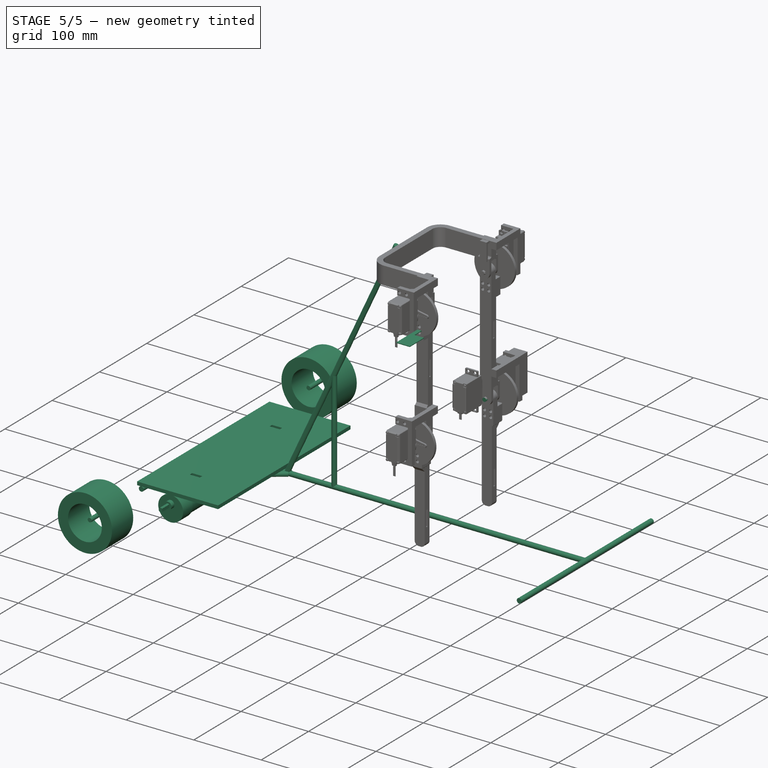
[diagram: stage 5 of 5 — iso view after this stage's code; geometry added in this stage tinted green]
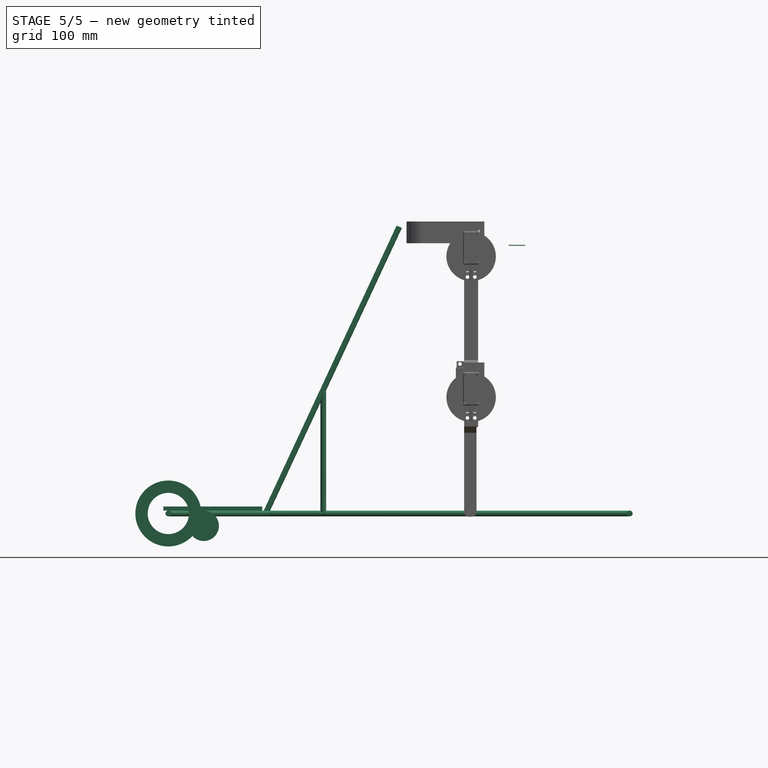
[diagram: stage 5 of 5 — front view after this stage's code; geometry added in this stage tinted green]
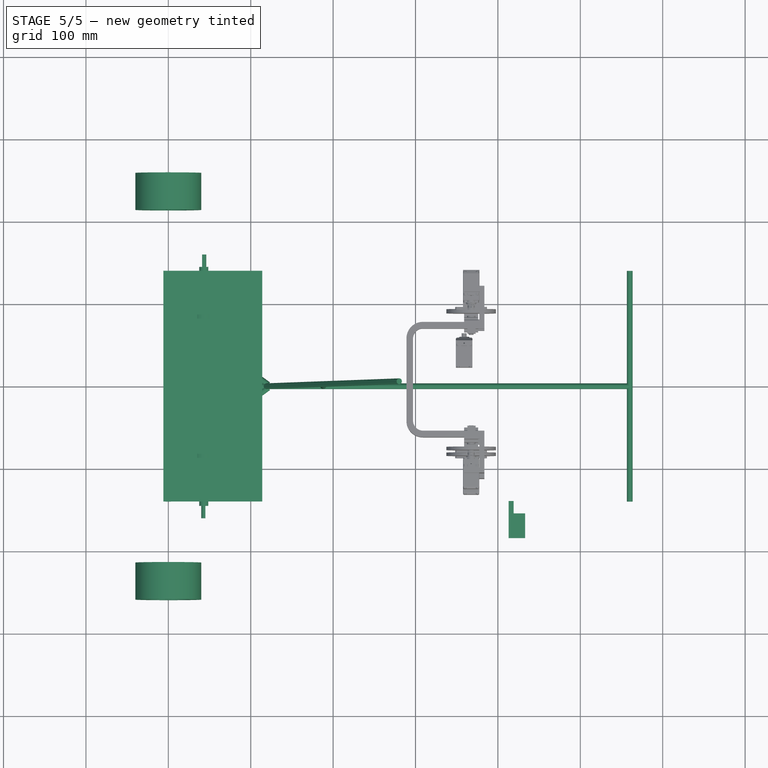
[diagram: stage 5 of 5 — top view after this stage's code; geometry added in this stage tinted green]
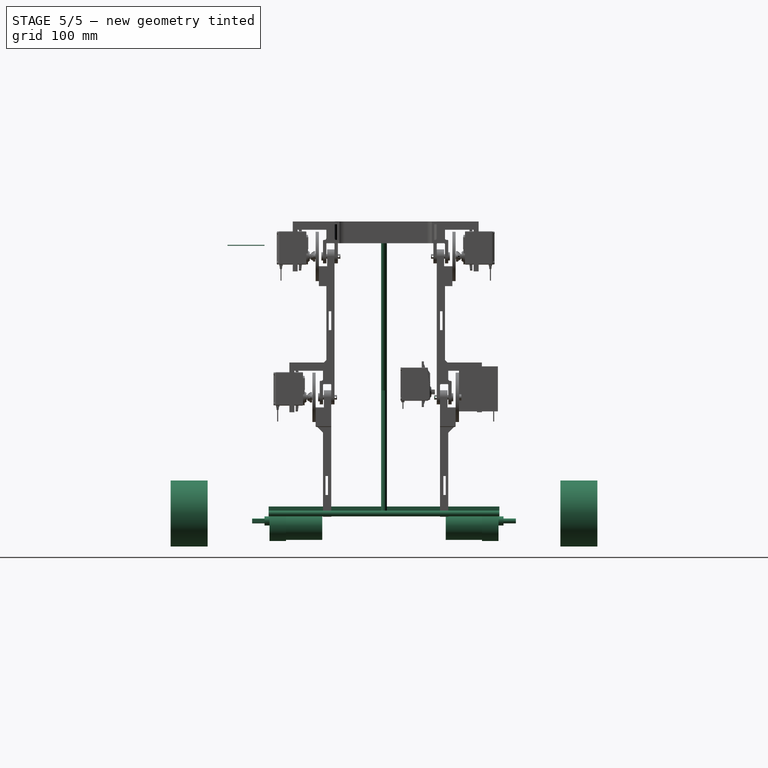
[diagram: stage 5 of 5 — right view after this stage's code; geometry added in this stage tinted green]
FEATURE [Part::Cylinder] Cylinder  label="Eje Central"
  Angle = 360
  Height = 560
  Placement = pos=(0,0,0) rot=(0,1,0;1.5708rad)
  Radius = 3.5
FEATURE [Part::Cylinder] Cylinder001  label="Eje Ruedas traseras"
  Angle = 360
  Height = 280
  Placement = pos=(0,140,0) rot=(1,0,0;1.5708rad)
  Radius = 3.5
FEATURE [Part::Cylinder] Cylinder002  label="Eje Ruedas delanteras"
  Angle = 360
  Height = 280
  Placement = pos=(560,140,0) rot=(1,0,0;1.5708rad)
  Radius = 3.5
FEATURE [Part::Cylinder] Cylinder003  label="Soporte Derecho"
  Angle = 360
  Height = 150
  Placement = pos=(0,-90,0) rot=(-0.295242,0.908661,0.295242;1.66643rad)
  Radius = 3.5
FEATURE [Part::Cylinder] Cylinder004  label="Soporte Izquierdo"
  Angle = 360
  Height = 150
  Placement = pos=(0,90,0) rot=(0.295242,0.908661,-0.295242;1.66643rad)
  Radius = 3.5
FEATURE [Part::Cylinder] Cylinder005  label="Soporte Mastil"
  Angle = 360
  Height = 150
  Placement = pos=(188,0,0) rot=(0,0,1;0rad)
  Radius = 3.5
FEATURE [Part::Cylinder] Cylinder006  label="Mastil"
  Angle = 360
  Height = 384
  Placement = pos=(118,0,0) rot=(0,1,0;0.436332rad)
  Radius = 3.5
FEATURE [Part::MultiFuse] Fusion  label="Estructura Exo"
  Shapes = -> [Cylinder,Cylinder001,Cylinder003,Cylinder002,Cylinder004,Cylinder005,Cylinder006]
FEATURE [Part::Box] Box  label="Tabla"
  Height = 5
  Length = 120
  Placement = pos=(-6,-140,73.5) rot=(0,0,1;0rad)
  Width = 280
FEATURE [Part::Cylinder] Cylinder012  label="Caja Reductora001"
  Angle = 360
  Height = 20
  Placement = pos=(0,-298,44) rot=(0,0,1;0rad)
  Radius = 18.4
FEATURE [Part::Cylinder] Cylinder013  label="Motor001"
  Angle = 360
  Height = 30
  Placement = pos=(0,-298,14) rot=(0,0,1;0rad)
  Radius = 17
FEATURE [Part::Cylinder] Cylinder014  label="Encoder001"
  Angle = 360
  Height = 14
  Placement = pos=(0,-298,0) rot=(0,0,1;0rad)
  Radius = 17
FEATURE [Part::Cylinder] Cylinder015  label="Cilindro002"
  Angle = 360
  Height = 6
  Placement = pos=(0,-292,64) rot=(0,0,1;0rad)
  Radius = 5.5
FEATURE [Part::Cylinder] Cylinder016  label="Cilindro003"
  Angle = 360
  Height = 15
  Placement = pos=(0,-186,0) rot=(0,0,1;0rad)
  Radius = 3
FEATURE [Part::Box] Box002  label="Cubo001"
  Height = 21
  Length = 11
  Placement = pos=(2,-191,-2) rot=(0,0,1;0rad)
  Width = 10
FEATURE [Part::Cut] Cut001
  Base = -> Cylinder016
  Placement = pos=(0,-106,70) rot=(0,0,1;0rad)
  Tool = -> Box002
FEATURE [Part::MultiFuse] Fusion002  label="Motor 37Dx68L001 Derecha"
  Placement = pos=(43,-75,283) rot=(1,0,0;1.5708rad)
  Shapes = -> [Cylinder012,Cylinder014,Cylinder015,Cylinder013,Cut001]
FEATURE [Part::Cylinder] Cylinder017  label="Caja Reductora002"
  Angle = 360
  Height = 20
  Placement = pos=(0,-298,44) rot=(0,0,1;0rad)
  Radius = 18.4
FEATURE [Part::Cylinder] Cylinder018  label="Motor002"
  Angle = 360
  Height = 30
  Placement = pos=(0,-298,14) rot=(0,0,1;0rad)
  Radius = 17
FEATURE [Part::Cylinder] Cylinder019  label="Encoder002"
  Angle = 360
  Height = 14
  Placement = pos=(0,-298,0) rot=(0,0,1;0rad)
  Radius = 17
FEATURE [Part::Cylinder] Cylinder020  label="Cilindro004"
  Angle = 360
  Height = 6
  Placement = pos=(0,-292,64) rot=(0,0,1;0rad)
  Radius = 5.5
FEATURE [Part::Cylinder] Cylinder021  label="Cilindro005"
  Angle = 360
  Height = 15
  Placement = pos=(0,-186,0) rot=(0,0,1;0rad)
  Radius = 3
FEATURE [Part::Box] Box003  label="Cubo002"
  Height = 21
  Length = 11
  Placement = pos=(2,-191,-2) rot=(0,0,1;0rad)
  Width = 10
FEATURE [Part::Cut] Cut002
  Base = -> Cylinder021
  Placement = pos=(0,-106,70) rot=(0,0,1;0rad)
  Tool = -> Box003
FEATURE [Part::MultiFuse] Fusion003  label="Motor 37Dx68L001 Izquierda001"
  Placement = pos=(43,75,283) rot=(0,0.707107,0.707107;3.14159rad)
  Shapes = -> [Cylinder017,Cylinder019,Cylinder020,Cylinder018,Cut002]
FEATURE [Part::Box] Box004  label="Cubo003"
  Height = 16
  Length = 15
  Placement = pos=(35,-87,68) rot=(0,0,1;0rad)
  Width = 5
FEATURE [Part::Cut] Cut003
  Base = -> Box
  Tool = -> Box004
FEATURE [Part::Box] Box005  label="Cubo004"
  Height = 16
  Length = 15
  Placement = pos=(35,82,69) rot=(0,0,1;0rad)
  Width = 5
FEATURE [Part::Cut] Cut004  label="Tabla Cortes"
  Base = -> Cut003
  Placement = pos=(0,0,-70) rot=(0,0,1;0rad)
  Tool = -> Box005
FEATURE [Part::Cylinder] Cylinder022  label="Cilindro"
  Angle = 360
  Height = 45
  Placement = pos=(0,-214,0) rot=(1,0,0;1.5708rad)
  Radius = 40
FEATURE [Part::Cylinder] Cylinder023  label="Cilindro006"
  Angle = 360
  Height = 60
  Placement = pos=(0,-207,0) rot=(1,0,0;1.5708rad)
  Radius = 25
FEATURE [Part::Cut] Cut
  Base = -> Cylinder022
  Tool = -> Cylinder023
FEATURE [Part::Cylinder] Cylinder024  label="Cilindro007"
  Angle = 360
  Height = 35
  Placement = pos=(0,-214,0) rot=(1,0,0;1.5708rad)
  Radius = 3
FEATURE [Part::MultiFuse] Fusion004  label="Rueda Derecha"
  Shapes = -> [Cut,Cylinder024]
FEATURE [Part::Cylinder] Cylinder025  label="Cilindro008"
  Angle = 360
  Height = 45
  Placement = pos=(0,-214,0) rot=(1,0,0;1.5708rad)
  Radius = 40
FEATURE [Part::Cylinder] Cylinder026  label="Cilindro009"
  Angle = 360
  Height = 60
  Placement = pos=(0,-207,0) rot=(1,0,0;1.5708rad)
  Radius = 25
FEATURE [Part::Cut] Cut005
  Base = -> Cylinder025
  Tool = -> Cylinder026
FEATURE [Part::Cylinder] Cylinder027  label="Cilindro010"
  Angle = 360
  Height = 35
  Placement = pos=(0,-214,0) rot=(1,0,0;1.5708rad)
  Radius = 3
FEATURE [Part::MultiFuse] Fusion005  label="Rueda Izquierda"
  Placement = pos=(0,0,0) rot=(0,0,1;3.14159rad)
  Shapes = -> [Cut005,Cylinder027]
FEATURE [Part::Box] Box006  label="Cubo"
  Height = 20
  Length = 1
  Placement = pos=(0,-257,54) rot=(0,0,1;0rad)
  Width = 45
FEATURE [Part::Box] Box007  label="Cubo005"
  Height = 14
  Length = 10
  Placement = pos=(-4,-227,60) rot=(0,0,1;0rad)
  Width = 15
FEATURE [Part::Cut] Cut006
  Base = -> Box006
  Placement = pos=(359,67,326) rot=(0,1,0;1.5708rad)
  Tool = -> Box007
FEATURE [Part::Cut] Cut007  label="Eje_full"
  Base = -> Fusion009
  Placement = pos=(367.5,84,141) rot=(0.57735,0.57735,-0.57735;2.0944rad)
  Tool = -> Pad004
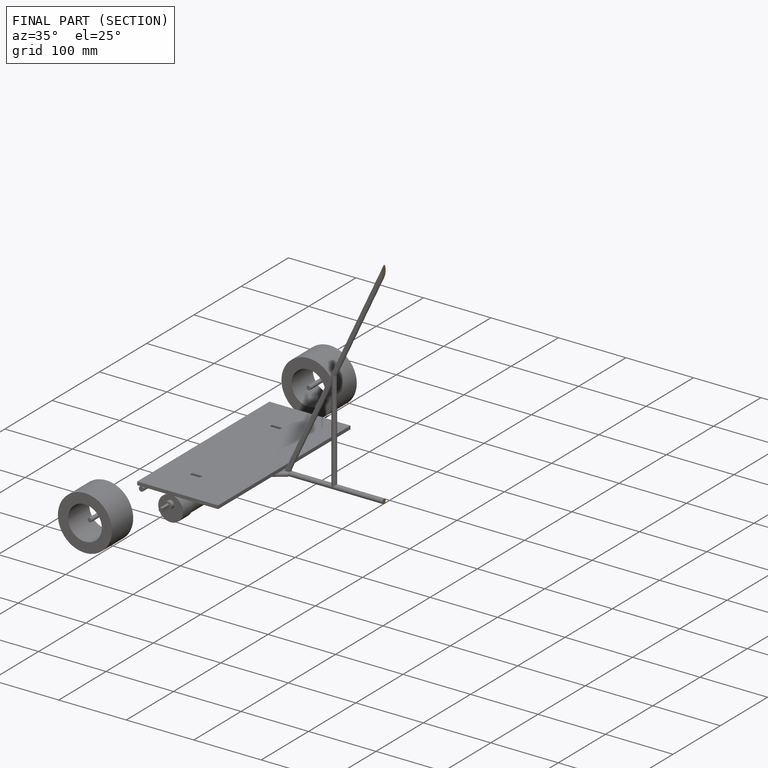
[diagram: finished part — half-section view (interior)]
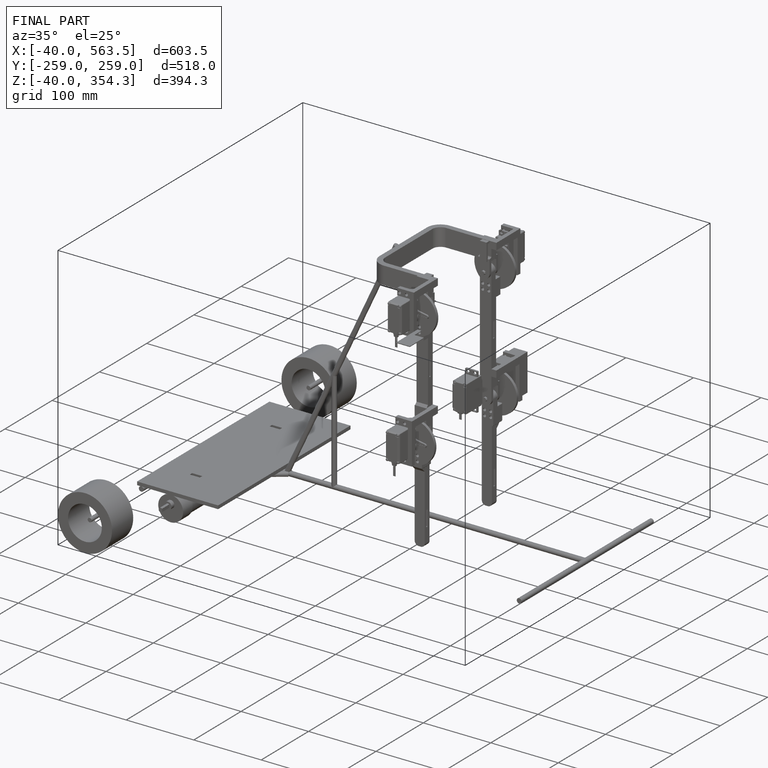
[diagram: finished part — iso view with bounding-box wireframe]
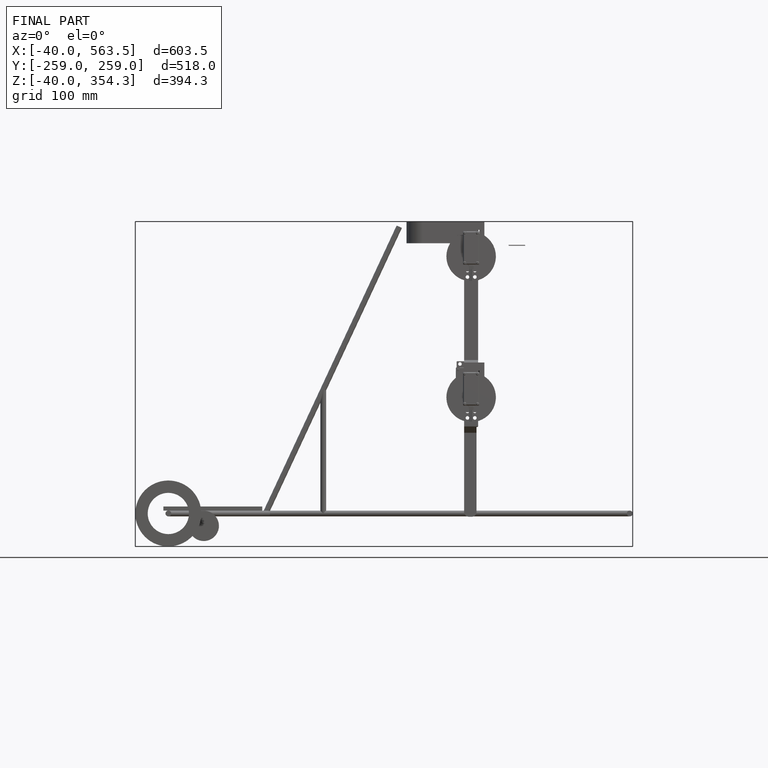
[diagram: finished part — front view with bounding-box wireframe]
